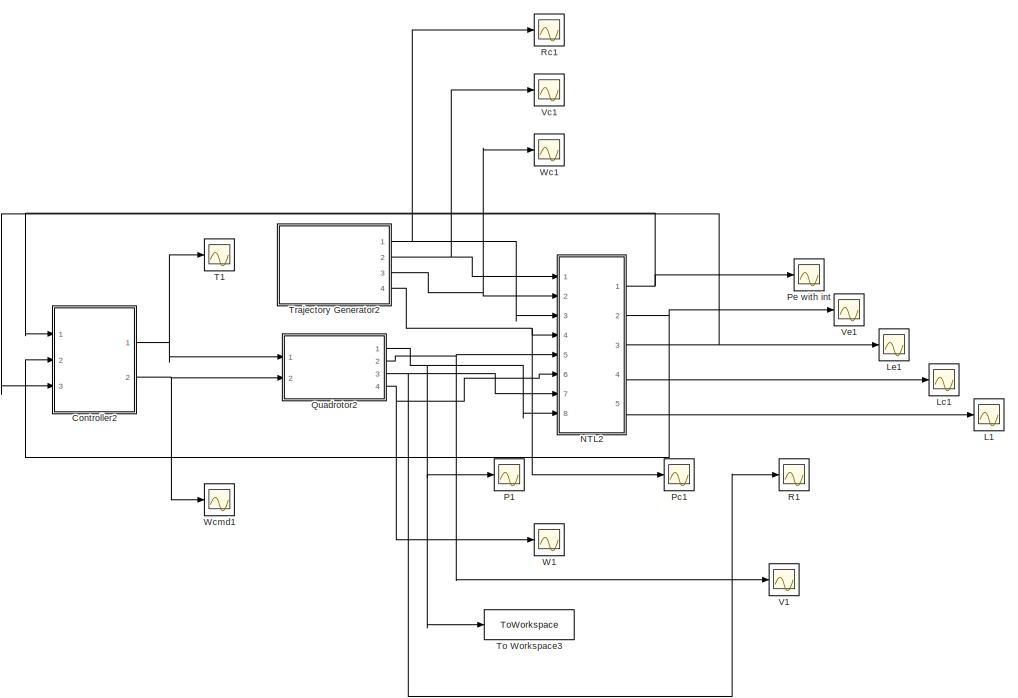
[diagram: root canvas - part 1/6, top center region]
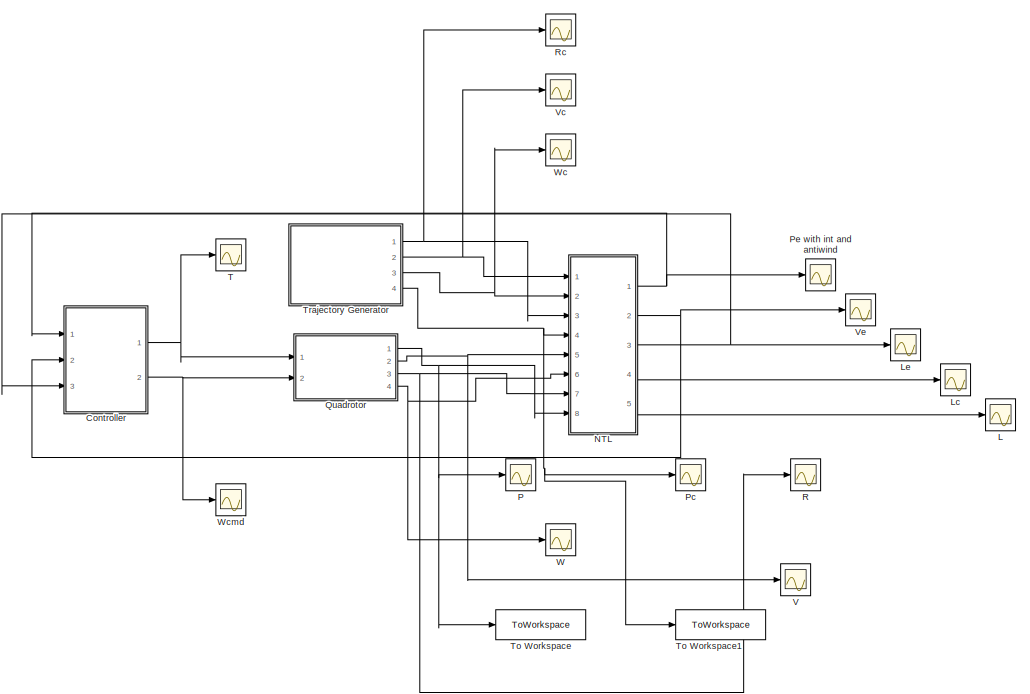
[diagram: root canvas - part 2/6, top left region]
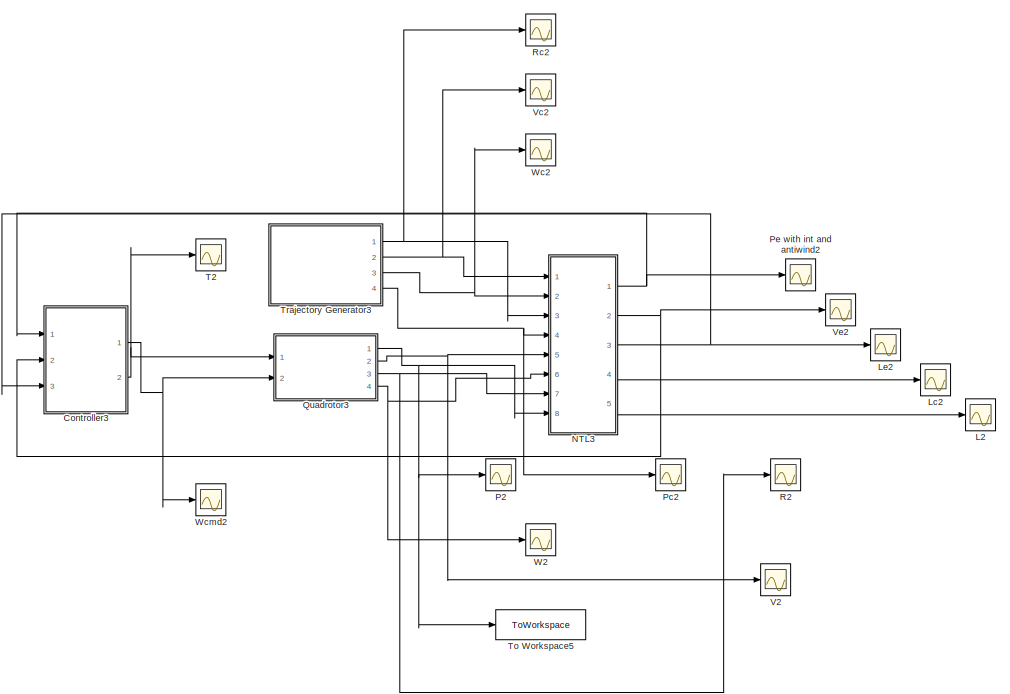
[diagram: root canvas - part 3/6, central region]
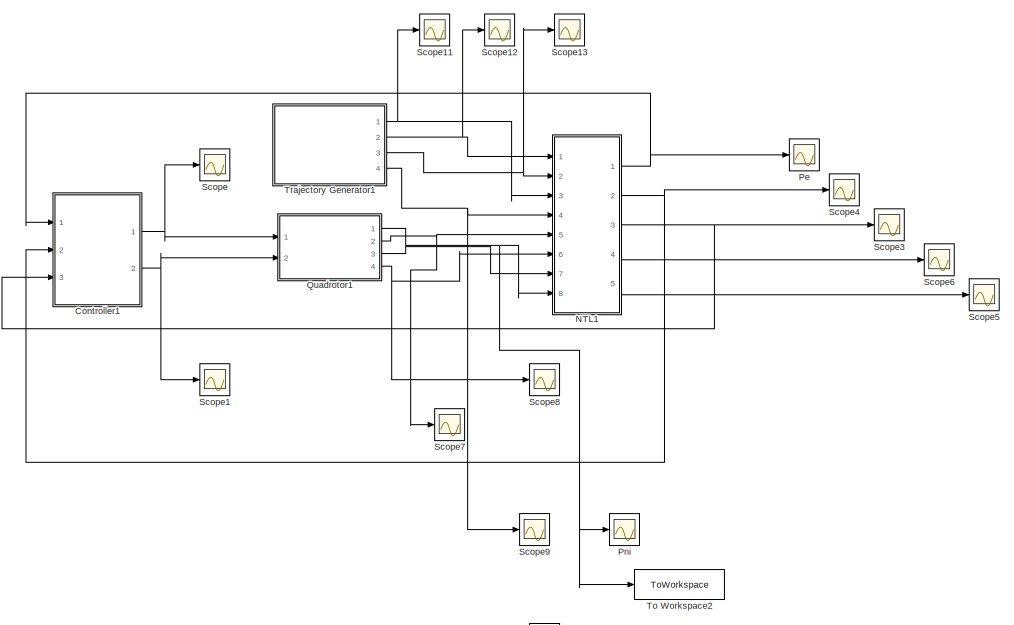
[diagram: root canvas - part 4/6, middle left region]
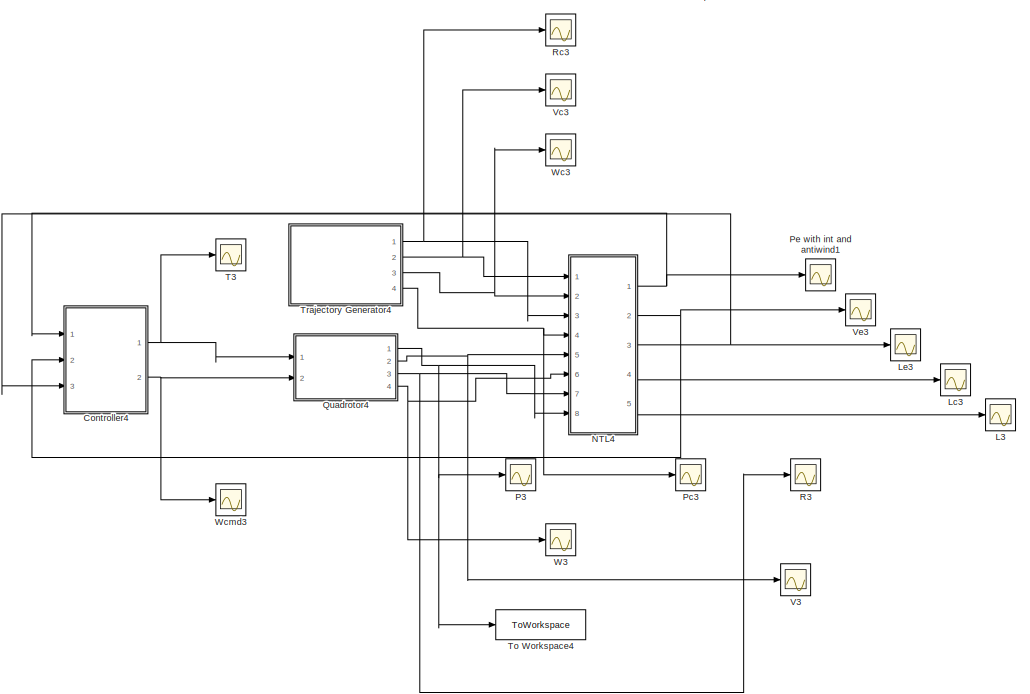
[diagram: root canvas - part 5/6, bottom left region]
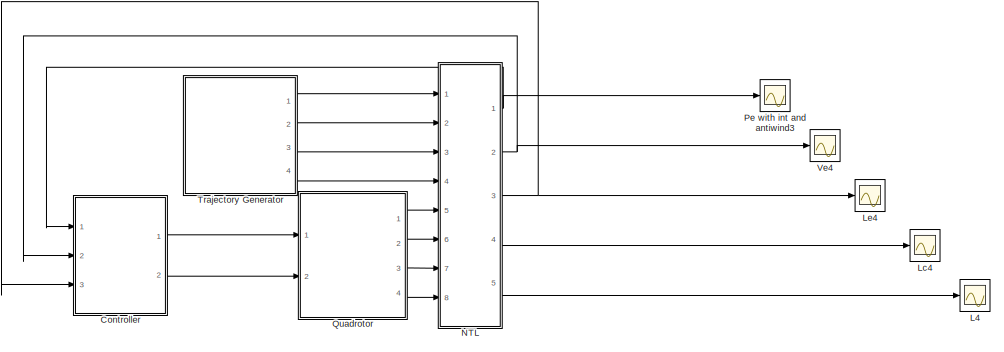
[diagram: root canvas - part 6/6, bottom right region]
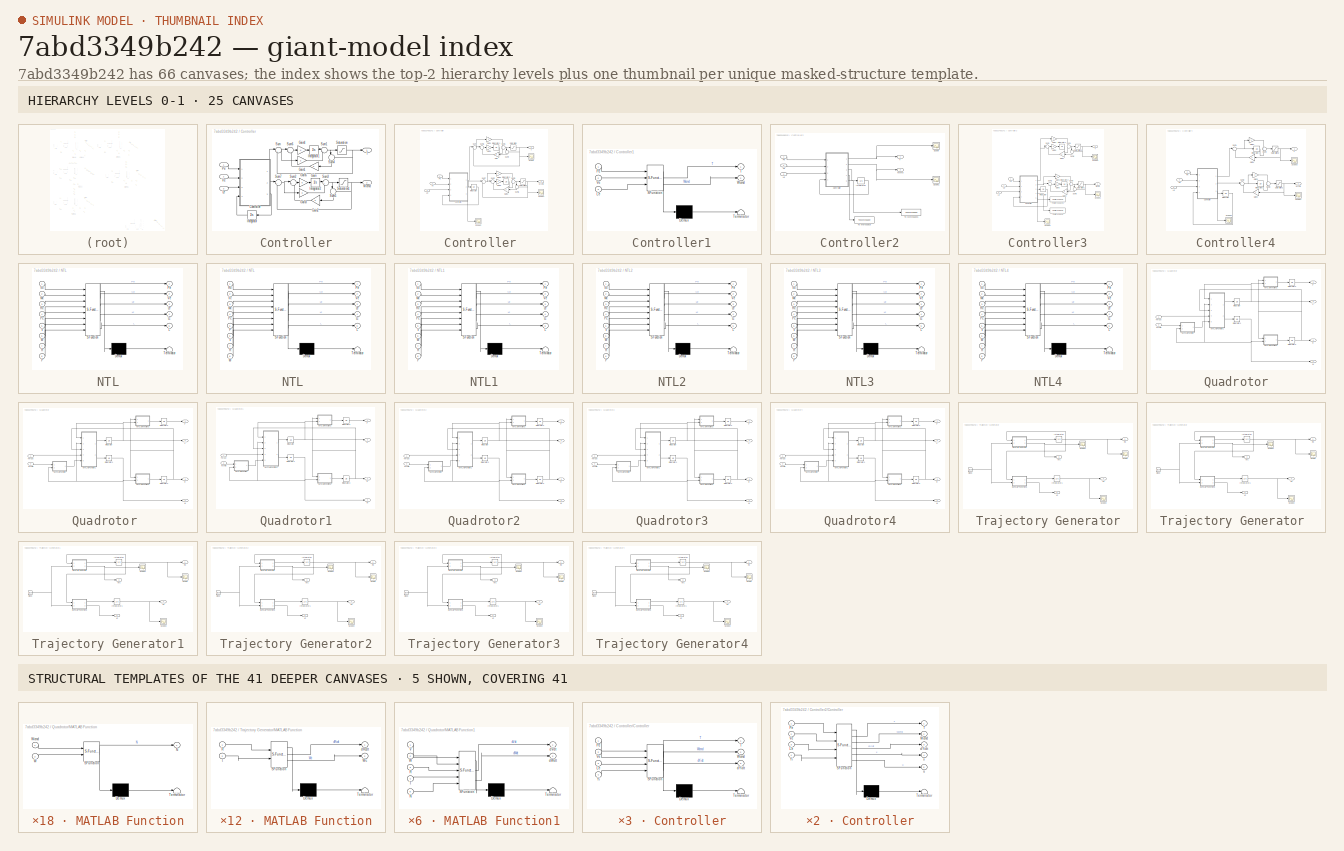
[diagram: thumbnail index - top-2 hierarchy levels (25 canvases) + 5 structural-template representatives of the remaining 41 canvases]
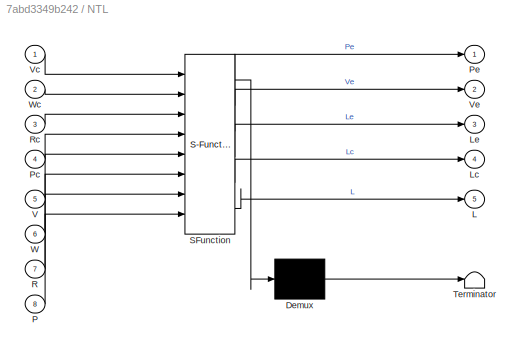
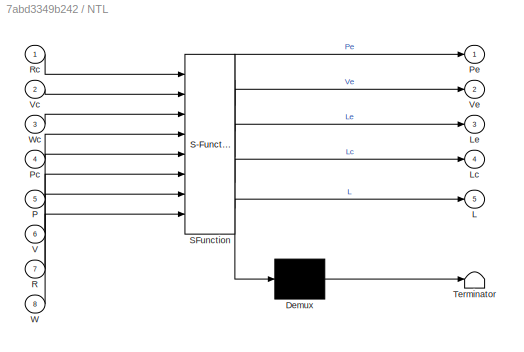
MODEL slx_7abd3349b242
KIND model
CONFIG AbsTol = auto
CONFIG EnableMultiTasking = off
CONFIG FixedStep = auto
CONFIG MaxStep = 0.01
CONFIG MinStep = auto
CONFIG RelTol = 1e-3
CONFIG SampleTimeConstraint = Unconstrained
CONFIG SolverName = VariableStepAuto
CONFIG StartTime = 0.0
CONFIG StopTime = 100
BLOCK [SubSystem] Controller
  Ports = [3, 2]
  RequestExecContextInheritance = off
BLOCK [SubSystem] Controller 
  Ports = [3, 2]
  RequestExecContextInheritance = off
BLOCK [SubSystem] Controller /Controller
  ErrorFcn = Stateflow.Translate.translate
  PermitHierarchicalResolution = ExplicitOnly
  Ports = [4, 3]
  RequestExecContextInheritance = off
  SFBlockType = MATLAB Function
  TreatAsAtomicUnit = on
BLOCK [Demux] Controller /Controller/ Demux 
  Outputs = 1
  Ports = [1, 1]
BLOCK [S-Function] Controller /Controller/ SFunction 
  EnableBusSupport = on
  FunctionName = sf_sfun
  Parameters = Ki
  PortCounts = [4 4]
  Ports = [4, 4]
  SFcnIsStateOwnerBlock = off
  SFunctionDeploymentMode = off
  Tag = Stateflow S-Function 41
BLOCK [Terminator] Controller /Controller/ Terminator 
BLOCK [Inport] Controller /Controller/Le
  Port = 3
BLOCK [Inport] Controller /Controller/Pe
BLOCK [Outport] Controller /Controller/T
BLOCK [Inport] Controller /Controller/Ve
  Port = 2
BLOCK [Outport] Controller /Controller/Wcmd
  Port = 2
BLOCK [Inport] Controller /Controller/Yi
  Port = 4
BLOCK [Outport] Controller /Controller/dYidt
  Port = 3
BLOCK [Gain] Controller /Gain
  Gain = 8
BLOCK [Gain] Controller /Gain1
  Gain = 2
BLOCK [Gain] Controller /Gain2
BLOCK [Gain] Controller /Gain3
BLOCK [Gain] Controller /Gain4
BLOCK [Gain] Controller /Gain5
  Gain = 5
BLOCK [Integrator] Controller /Integrator
  InitialCondition = [0;0;0;0]
  Ports = [1, 1]
BLOCK [Integrator] Controller /Integrator1
  InitialCondition = [0]
  Ports = [1, 1]
BLOCK [Integrator] Controller /Integrator2
  InitialCondition = [0]
  Ports = [1, 1]
BLOCK [Inport] Controller /Le
  Port = 3
BLOCK [Inport] Controller /Pe
BLOCK [Saturate] Controller /Saturation
  LowerLimit = -3
  UpperLimit = 3
BLOCK [Saturate] Controller /Saturation1
  LowerLimit = -3
  UpperLimit = 3
BLOCK [Scope] Controller /Scope
  Floating = off
  NumInputPorts = 1
  Ports = [1]
  ScopeSpecificationString = Simulink.scopes.TimeScopeBlockCfg('CurrentConfiguration', extmgr.ConfigurationSet(extmgr.Configuration('Core','General UI',true),extmgr.Configuration('Core','Source UI',true),extmgr.Configuration('Sources','WiredSimulink',true,'DataLoggingVariableName','ScopeData1'),extmgr.Configuration('Visuals','Time Domain',true,'SerializedDisplays',{struct('MinYLimReal','-0.375','MaxYLimReal','3.375','YLabelRe...<+1409ch>
BLOCK [Scope] Controller /Scope1
  Floating = off
  NumInputPorts = 1
  Ports = [1]
  ScopeSpecificationString = Simulink.scopes.TimeScopeBlockCfg('CurrentConfiguration', extmgr.ConfigurationSet(extmgr.Configuration('Core','General UI',true),extmgr.Configuration('Core','Source UI',true),extmgr.Configuration('Sources','WiredSimulink',true,'DataLoggingVariableName','ScopeData2'),extmgr.Configuration('Visuals','Time Domain',true,'SerializedDisplays',{struct('MinYLimReal','-4.375','MaxYLimReal','4.375','YLabelRe...<+1460ch>
BLOCK [Scope] Controller /Scope2
  Floating = off
  NumInputPorts = 1
  Ports = [1]
  ScopeSpecificationString = Simulink.scopes.TimeScopeBlockCfg('CurrentConfiguration', extmgr.ConfigurationSet(extmgr.Configuration('Core','General UI',true),extmgr.Configuration('Core','Source UI',true),extmgr.Configuration('Sources','WiredSimulink',true,'DataLoggingVariableName','ScopeData1'),extmgr.Configuration('Visuals','Time Domain',true,'SerializedDisplays',{struct('MinYLimReal','-0.26618','MaxYLimReal','1.1407','YLabe...<+1504ch>  <repeated x3 — deduplicated; at blocks: Scope2>
BLOCK [Sum] Controller /Sum
  Inputs = |+-
  Ports = [2, 1]
BLOCK [Sum] Controller /Sum1
  Ports = [2, 1]
BLOCK [Sum] Controller /Sum2
  Inputs = |+-
  Ports = [2, 1]
BLOCK [Sum] Controller /Sum3
  Ports = [2, 1]
BLOCK [Sum] Controller /Sum4
  Inputs = |+-
  NameLocation = right
  Ports = [2, 1]
BLOCK [Sum] Controller /Sum5
  Inputs = |+-
  NameLocation = right
  Ports = [2, 1]
BLOCK [Sum] Controller /Sum6
  Inputs = |+-
  Ports = [2, 1]
BLOCK [Sum] Controller /Sum7
  Inputs = |+-
  Ports = [2, 1]
BLOCK [Outport] Controller /T
  VectorParamsAs1DForOutWhenUnconnected = off
BLOCK [Inport] Controller /Ve
  Port = 2
BLOCK [Outport] Controller /Wcmd
  Port = 2
  VectorParamsAs1DForOutWhenUnconnected = off
BLOCK [SubSystem] Controller/Controller
  ErrorFcn = Stateflow.Translate.translate
  PermitHierarchicalResolution = ExplicitOnly
  Ports = [4, 3]
  RequestExecContextInheritance = off
  SFBlockType = MATLAB Function
  TreatAsAtomicUnit = on
BLOCK [Demux] Controller/Controller/ Demux 
  Outputs = 1
  Ports = [1, 1]
BLOCK [S-Function] Controller/Controller/ SFunction 
  EnableBusSupport = on
  FunctionName = sf_sfun
  Parameters = Ki
  PortCounts = [4 4]
  Ports = [4, 4]
  SFcnIsStateOwnerBlock = off
  SFunctionDeploymentMode = off
  Tag = Stateflow S-Function 18
BLOCK [Terminator] Controller/Controller/ Terminator 
BLOCK [Inport] Controller/Controller/Le
  Port = 3
BLOCK [Inport] Controller/Controller/Pe
BLOCK [Outport] Controller/Controller/T
BLOCK [Inport] Controller/Controller/Ve
  Port = 2
BLOCK [Outport] Controller/Controller/Wcmd
  Port = 2
BLOCK [Inport] Controller/Controller/Yi
  Port = 4
BLOCK [Outport] Controller/Controller/dYidt
  Port = 3
BLOCK [Gain] Controller/Gain
  Gain = 5
BLOCK [Gain] Controller/Gain1
  Gain = 2
BLOCK [Gain] Controller/Gain2
BLOCK [Gain] Controller/Gain3
BLOCK [Gain] Controller/Gain4
BLOCK [Gain] Controller/Gain5
  Gain = 5
BLOCK [Integrator] Controller/Integrator
  InitialCondition = [0;0;0;0]
  Ports = [1, 1]
BLOCK [Integrator] Controller/Integrator1
  InitialCondition = [0]
  Ports = [1, 1]
BLOCK [Integrator] Controller/Integrator2
  InitialCondition = [0]
  Ports = [1, 1]
BLOCK [Inport] Controller/Le
  Port = 3
BLOCK [Inport] Controller/Pe
BLOCK [Saturate] Controller/Saturation
  LowerLimit = -3
  UpperLimit = 3
BLOCK [Saturate] Controller/Saturation1
  LowerLimit = -3
  UpperLimit = 3
BLOCK [Sum] Controller/Sum
  Inputs = |+-
  Ports = [2, 1]
BLOCK [Sum] Controller/Sum1
  Inputs = |++
  Ports = [2, 1]
BLOCK [Sum] Controller/Sum2
  Inputs = |+-
  Ports = [2, 1]
BLOCK [Sum] Controller/Sum3
  Inputs = |++
  Ports = [2, 1]
BLOCK [Sum] Controller/Sum4
  Inputs = |+-
  NameLocation = right
  Ports = [2, 1]
BLOCK [Sum] Controller/Sum5
  Inputs = |+-
  NameLocation = right
  Ports = [2, 1]
BLOCK [Sum] Controller/Sum6
  Inputs = |+-
  Ports = [2, 1]
BLOCK [Sum] Controller/Sum7
  Inputs = |+-
  Ports = [2, 1]
BLOCK [Outport] Controller/T
  VectorParamsAs1DForOutWhenUnconnected = off
BLOCK [Inport] Controller/Ve
  Port = 2
BLOCK [Outport] Controller/Wcmd
  Port = 2
  VectorParamsAs1DForOutWhenUnconnected = off
BLOCK [SubSystem] Controller1
  ErrorFcn = Stateflow.Translate.translate
  PermitHierarchicalResolution = ExplicitOnly
  Ports = [3, 2]
  RequestExecContextInheritance = off
  SFBlockType = MATLAB Function
  TreatAsAtomicUnit = on
BLOCK [Demux] Controller1/ Demux 
  Outputs = 1
  Ports = [1, 1]
BLOCK [S-Function] Controller1/ SFunction 
  EnableBusSupport = on
  FunctionName = sf_sfun
  Parameters = K
  PortCounts = [3 3]
  Ports = [3, 3]
  SFcnIsStateOwnerBlock = off
  SFunctionDeploymentMode = off
  Tag = Stateflow S-Function 2
BLOCK [Terminator] Controller1/ Terminator 
BLOCK [Inport] Controller1/Le
  Port = 3
BLOCK [Inport] Controller1/Pe
BLOCK [Outport] Controller1/T
BLOCK [Inport] Controller1/Ve
  Port = 2
BLOCK [Outport] Controller1/Wcmd
  Port = 2
BLOCK [SubSystem] Controller2
  Ports = [3, 2]
  RequestExecContextInheritance = off
BLOCK [SubSystem] Controller2/Controller
  ErrorFcn = Stateflow.Translate.translate
  PermitHierarchicalResolution = ExplicitOnly
  Ports = [4, 5]
  RequestExecContextInheritance = off
  SFBlockType = MATLAB Function
  TreatAsAtomicUnit = on
BLOCK [Demux] Controller2/Controller/ Demux 
  Outputs = 1
  Ports = [1, 1]
BLOCK [S-Function] Controller2/Controller/ SFunction 
  EnableBusSupport = on
  FunctionName = sf_sfun
  Parameters = Ki
  PortCounts = [4 6]
  Ports = [4, 6]
  SFcnIsStateOwnerBlock = off
  SFunctionDeploymentMode = off
  Tag = Stateflow S-Function 9
BLOCK [Terminator] Controller2/Controller/ Terminator 
BLOCK [Inport] Controller2/Controller/Le
  Port = 3
BLOCK [Inport] Controller2/Controller/Pe
BLOCK [Outport] Controller2/Controller/T
BLOCK [Inport] Controller2/Controller/Ve
  Port = 2
BLOCK [Outport] Controller2/Controller/Wcmd
  Port = 2
BLOCK [Inport] Controller2/Controller/Yi
  Port = 4
BLOCK [Outport] Controller2/Controller/dYidt
  Port = 3
BLOCK [Outport] Controller2/Controller/u
  Port = 5
BLOCK [Outport] Controller2/Controller/x
  Port = 4
BLOCK [Integrator] Controller2/Integrator
  InitialCondition = [0;0;0;0]
  Ports = [1, 1]
BLOCK [Inport] Controller2/Le
  Port = 3
BLOCK [Inport] Controller2/Pe
BLOCK [Scope] Controller2/Scope
  Floating = off
  NumInputPorts = 1
  Ports = [1]
  ScopeSpecificationString = Simulink.scopes.TimeScopeBlockCfg('CurrentConfiguration', extmgr.ConfigurationSet(extmgr.Configuration('Core','General UI',true),extmgr.Configuration('Core','Source UI',true),extmgr.Configuration('Sources','WiredSimulink',true,'DataLoggingVariableName','ScopeData1'),extmgr.Configuration('Visuals','Time Domain',true,'SerializedDisplays',{struct('MinYLimReal','-0.32832','MaxYLimReal','2.95489','YLab...<+1439ch>
BLOCK [Scope] Controller2/Scope1
  Floating = off
  NumInputPorts = 1
  Ports = [1]
  ScopeSpecificationString = Simulink.scopes.TimeScopeBlockCfg('CurrentConfiguration', extmgr.ConfigurationSet(extmgr.Configuration('Core','General UI',true),extmgr.Configuration('Core','Source UI',true),extmgr.Configuration('Sources','WiredSimulink',true,'DataLoggingVariableName','ScopeData2'),extmgr.Configuration('Visuals','Time Domain',true,'SerializedDisplays',{struct('MinYLimReal','-5.03294','MaxYLimReal','2.32202','YLab...<+1484ch>
BLOCK [Outport] Controller2/T
  VectorParamsAs1DForOutWhenUnconnected = off
BLOCK [ToWorkspace] Controller2/To Workspace
  FixptAsFi = on
  MaxDataPoints = inf
  Ports = [1]
  SampleTime = -1
  SaveFormat = Timeseries
  VariableName = xnoaw
BLOCK [ToWorkspace] Controller2/To Workspace1
  FixptAsFi = on
  MaxDataPoints = inf
  Ports = [1]
  SampleTime = -1
  SaveFormat = Timeseries
  VariableName = unoaw
BLOCK [Inport] Controller2/Ve
  Port = 2
BLOCK [Outport] Controller2/Wcmd
  Port = 2
  VectorParamsAs1DForOutWhenUnconnected = off
BLOCK [SubSystem] Controller3
  Ports = [3, 2]
  RequestExecContextInheritance = off
BLOCK [SubSystem] Controller3/Controller
  ErrorFcn = Stateflow.Translate.translate
  PermitHierarchicalResolution = ExplicitOnly
  Ports = [4, 5]
  RequestExecContextInheritance = off
  SFBlockType = MATLAB Function
  TreatAsAtomicUnit = on
BLOCK [Demux] Controller3/Controller/ Demux 
  Outputs = 1
  Ports = [1, 1]
BLOCK [S-Function] Controller3/Controller/ SFunction 
  EnableBusSupport = on
  FunctionName = sf_sfun
  Parameters = Ki
  PortCounts = [4 6]
  Ports = [4, 6]
  SFcnIsStateOwnerBlock = off
  SFunctionDeploymentMode = off
  Tag = Stateflow S-Function 25
BLOCK [Terminator] Controller3/Controller/ Terminator 
BLOCK [Inport] Controller3/Controller/Le
  Port = 3
BLOCK [Inport] Controller3/Controller/Pe
BLOCK [Outport] Controller3/Controller/T
BLOCK [Inport] Controller3/Controller/Ve
  Port = 2
BLOCK [Outport] Controller3/Controller/Wcmd
  Port = 2
BLOCK [Inport] Controller3/Controller/Yi
  Port = 4
BLOCK [Outport] Controller3/Controller/dYidt
  Port = 3
BLOCK [Outport] Controller3/Controller/u
  Port = 5
BLOCK [Outport] Controller3/Controller/x
  Port = 4
BLOCK [Gain] Controller3/Gain1
  Gain = 4
BLOCK [Gain] Controller3/Gain2
BLOCK [Gain] Controller3/Gain3
BLOCK [Gain] Controller3/Gain4
  Gain = 2
BLOCK [Gain] Controller3/Gain5
  Gain = 5
BLOCK [Gain] Controller3/Gain6
BLOCK [Integrator] Controller3/Integrator
  InitialCondition = [0;0;0;0]
  Ports = [1, 1]
BLOCK [Integrator] Controller3/Integrator1
  InitialCondition = [0]
  Ports = [1, 1]
BLOCK [Integrator] Controller3/Integrator2
  InitialCondition = [0]
  Ports = [1, 1]
BLOCK [Inport] Controller3/Le
  Port = 3
BLOCK [Inport] Controller3/Pe
BLOCK [Saturate] Controller3/Saturation1
  LowerLimit = -3
  UpperLimit = 3
BLOCK [Saturate] Controller3/Saturation2
  LowerLimit = -3
  UpperLimit = 3
BLOCK [Scope] Controller3/Scope1
  Floating = off
  NumInputPorts = 1
  Ports = [1]
  ScopeSpecificationString = Simulink.scopes.TimeScopeBlockCfg('CurrentConfiguration', extmgr.ConfigurationSet(extmgr.Configuration('Core','General UI',true),extmgr.Configuration('Core','Source UI',true),extmgr.Configuration('Sources','WiredSimulink',true,'DataLoggingVariableName','ScopeData2'),extmgr.Configuration('Visuals','Time Domain',true,'SerializedDisplays',{struct('MinYLimReal','-4.375','MaxYLimReal','4.375','YLabelRe...<+1460ch>
BLOCK [Scope] Controller3/Scope2
  Floating = off
  NumInputPorts = 1
  Ports = [1]
BLOCK [Scope] Controller3/Scope3
  Floating = off
  NumInputPorts = 1
  Ports = [1]
  ScopeSpecificationString = Simulink.scopes.TimeScopeBlockCfg('CurrentConfiguration', extmgr.ConfigurationSet(extmgr.Configuration('Core','General UI',true),extmgr.Configuration('Core','Source UI',true),extmgr.Configuration('Sources','WiredSimulink',true,'DataLoggingVariableName','ScopeData16'),extmgr.Configuration('Visuals','Time Domain',true,'SerializedDisplays',{struct('MinYLimReal','-0.375','MaxYLimReal','3.375','YLabelR...<+1411ch>
BLOCK [Sum] Controller3/Sum1
  Inputs = |+-
  Ports = [2, 1]
BLOCK [Sum] Controller3/Sum2
  Inputs = |+-
  Ports = [2, 1]
BLOCK [Sum] Controller3/Sum3
  Ports = [2, 1]
BLOCK [Sum] Controller3/Sum4
  Ports = [2, 1]
BLOCK [Sum] Controller3/Sum5
  Inputs = |+-
  NameLocation = right
  Ports = [2, 1]
BLOCK [Sum] Controller3/Sum6
  Inputs = |+-
  NameLocation = right
  Ports = [2, 1]
BLOCK [Outport] Controller3/T
  Port = 2
  VectorParamsAs1DForOutWhenUnconnected = off
BLOCK [ToWorkspace] Controller3/To Workspace
  FixptAsFi = on
  MaxDataPoints = inf
  Ports = [1]
  SampleTime = -1
  SaveFormat = Timeseries
  VariableName = x
BLOCK [ToWorkspace] Controller3/To Workspace1
  FixptAsFi = on
  MaxDataPoints = inf
  Ports = [1]
  SampleTime = -1
  SaveFormat = Timeseries
  VariableName = u
BLOCK [Inport] Controller3/Ve
  Port = 2
BLOCK [Outport] Controller3/Wcmd
  VectorParamsAs1DForOutWhenUnconnected = off
BLOCK [SubSystem] Controller4
  Ports = [3, 2]
  RequestExecContextInheritance = off
BLOCK [SubSystem] Controller4/Controller
  ErrorFcn = Stateflow.Translate.translate
  PermitHierarchicalResolution = ExplicitOnly
  Ports = [4, 3]
  RequestExecContextInheritance = off
  SFBlockType = MATLAB Function
  TreatAsAtomicUnit = on
BLOCK [Demux] Controller4/Controller/ Demux 
  Outputs = 1
  Ports = [1, 1]
BLOCK [S-Function] Controller4/Controller/ SFunction 
  EnableBusSupport = on
  FunctionName = sf_sfun
  Parameters = Ki
  PortCounts = [4 4]
  Ports = [4, 4]
  SFcnIsStateOwnerBlock = off
  SFunctionDeploymentMode = off
  Tag = Stateflow S-Function 33
BLOCK [Terminator] Controller4/Controller/ Terminator 
BLOCK [Inport] Controller4/Controller/Le
  Port = 3
BLOCK [Inport] Controller4/Controller/Pe
BLOCK [Outport] Controller4/Controller/T
BLOCK [Inport] Controller4/Controller/Ve
  Port = 2
BLOCK [Outport] Controller4/Controller/Wcmd
  Port = 2
BLOCK [Inport] Controller4/Controller/Yi
  Port = 4
BLOCK [Outport] Controller4/Controller/dYidt
  Port = 3
BLOCK [Gain] Controller4/Gain1
  Gain = 4
BLOCK [Gain] Controller4/Gain2
  Gain = 3
BLOCK [Gain] Controller4/Gain3
  Gain = 2
BLOCK [Gain] Controller4/Gain4
  Gain = 2
BLOCK [Integrator] Controller4/Integrator
  InitialCondition = [0;0;0;0]
  Ports = [1, 1]
BLOCK [Integrator] Controller4/Integrator1
  InitialCondition = [0]
  Ports = [1, 1]
BLOCK [Integrator] Controller4/Integrator2
  InitialCondition = [0]
  Ports = [1, 1]
BLOCK [Inport] Controller4/Le
  Port = 3
BLOCK [Inport] Controller4/Pe
BLOCK [Saturate] Controller4/Saturation1
  LowerLimit = -3
  UpperLimit = 3
BLOCK [Saturate] Controller4/Saturation2
  LowerLimit = -3
  UpperLimit = 3
BLOCK [Scope] Controller4/Scope1
  Floating = off
  NumInputPorts = 1
  Ports = [1]
  ScopeSpecificationString = Simulink.scopes.TimeScopeBlockCfg('CurrentConfiguration', extmgr.ConfigurationSet(extmgr.Configuration('Core','General UI',true),extmgr.Configuration('Core','Source UI',true),extmgr.Configuration('Sources','WiredSimulink',true,'DataLoggingVariableName','ScopeData33'),extmgr.Configuration('Visuals','Time Domain',true,'SerializedDisplays',{struct('MinYLimReal','-0.375','MaxYLimReal','3.375','YLabelR...<+1411ch>
BLOCK [Scope] Controller4/Scope2
  Floating = off
  NumInputPorts = 1
  Ports = [1]
BLOCK [Scope] Controller4/Scope3
  Floating = off
  NumInputPorts = 1
  Ports = [1]
  ScopeSpecificationString = Simulink.scopes.TimeScopeBlockCfg('CurrentConfiguration', extmgr.ConfigurationSet(extmgr.Configuration('Core','General UI',true),extmgr.Configuration('Core','Source UI',true),extmgr.Configuration('Sources','WiredSimulink',true,'DataLoggingVariableName','ScopeData32'),extmgr.Configuration('Visuals','Time Domain',true,'SerializedDisplays',{struct('MinYLimReal','-0.375','MaxYLimReal','3.375','YLabelR...<+1411ch>
BLOCK [Sum] Controller4/Sum1
  Inputs = |+-
  Ports = [2, 1]
BLOCK [Sum] Controller4/Sum2
  Inputs = |+-
  Ports = [2, 1]
BLOCK [Sum] Controller4/Sum3
  Ports = [2, 1]
BLOCK [Sum] Controller4/Sum4
  Ports = [2, 1]
BLOCK [Outport] Controller4/T
  VectorParamsAs1DForOutWhenUnconnected = off
BLOCK [Inport] Controller4/Ve
  Port = 2
BLOCK [Outport] Controller4/Wcmd
  Port = 2
  VectorParamsAs1DForOutWhenUnconnected = off
BLOCK [Scope] L
  Floating = off
  NumInputPorts = 1
  Ports = [1]
  ScopeSpecificationString = Simulink.scopes.TimeScopeBlockCfg('CurrentConfiguration', extmgr.ConfigurationSet(extmgr.Configuration('Core','General UI',true),extmgr.Configuration('Core','Source UI',true),extmgr.Configuration('Sources','WiredSimulink',true,'DataLoggingVariableName','ScopeData6'),extmgr.Configuration('Visuals','Time Domain',true,'SerializedDisplays',{struct('MinYLimReal','-224.95209','MaxYLimReal','224.64561','...<+1400ch>
BLOCK [Scope] L1
  Floating = off
  NumInputPorts = 1
  Ports = [1]
  ScopeSpecificationString = Simulink.scopes.TimeScopeBlockCfg('CurrentConfiguration', extmgr.ConfigurationSet(extmgr.Configuration('Core','General UI',true),extmgr.Configuration('Core','Source UI',true),extmgr.Configuration('Sources','WiredSimulink',true,'DataLoggingVariableName','ScopeData1'),extmgr.Configuration('Visuals','Time Domain',true,'SerializedDisplays',{struct('MinYLimReal','-224.8361','MaxYLimReal','224.86857','Y...<+1398ch>  <repeated x3 — deduplicated; at blocks: L1, L2, L4>
BLOCK [Scope] L2
  Floating = off
  NumInputPorts = 1
  Ports = [1]
BLOCK [Scope] L3
  Floating = off
  NumInputPorts = 1
  Ports = [1]
  ScopeSpecificationString = Simulink.scopes.TimeScopeBlockCfg('CurrentConfiguration', extmgr.ConfigurationSet(extmgr.Configuration('Core','General UI',true),extmgr.Configuration('Core','Source UI',true),extmgr.Configuration('Sources','WiredSimulink',true,'DataLoggingVariableName','ScopeData17'),extmgr.Configuration('Visuals','Time Domain',true,'SerializedDisplays',{struct('MinYLimReal','-224.8361','MaxYLimReal','224.86857','...<+1399ch>
BLOCK [Scope] L4
  Floating = off
  NumInputPorts = 1
  Ports = [1]
BLOCK [Scope] Lc
  Floating = off
  NumInputPorts = 1
  Ports = [1]
  ScopeSpecificationString = Simulink.scopes.TimeScopeBlockCfg('CurrentConfiguration', extmgr.ConfigurationSet(extmgr.Configuration('Core','General UI',true),extmgr.Configuration('Core','Source UI',true),extmgr.Configuration('Sources','WiredSimulink',true,'DataLoggingVariableName','ScopeData7'),extmgr.Configuration('Visuals','Time Domain',true,'SerializedDisplays',{struct('MinYLimReal','-224.80634','MaxYLimReal','224.06866','...<+1403ch>
BLOCK [Scope] Lc1
  Floating = off
  NumInputPorts = 1
  Ports = [1]
  ScopeSpecificationString = Simulink.scopes.TimeScopeBlockCfg('CurrentConfiguration', extmgr.ConfigurationSet(extmgr.Configuration('Core','General UI',true),extmgr.Configuration('Core','Source UI',true),extmgr.Configuration('Sources','WiredSimulink',true,'DataLoggingVariableName','ScopeData2'),extmgr.Configuration('Visuals','Time Domain',true,'SerializedDisplays',{struct('MinYLimReal','-224.53755','MaxYLimReal','224.91373','...<+1403ch>  <repeated x3 — deduplicated; at blocks: Lc1, Lc2, Lc4>
BLOCK [Scope] Lc2
  Floating = off
  NumInputPorts = 1
  Ports = [1]
BLOCK [Scope] Lc3
  Floating = off
  NumInputPorts = 1
  Ports = [1]
  ScopeSpecificationString = Simulink.scopes.TimeScopeBlockCfg('CurrentConfiguration', extmgr.ConfigurationSet(extmgr.Configuration('Core','General UI',true),extmgr.Configuration('Core','Source UI',true),extmgr.Configuration('Sources','WiredSimulink',true,'DataLoggingVariableName','ScopeData18'),extmgr.Configuration('Visuals','Time Domain',true,'SerializedDisplays',{struct('MinYLimReal','-224.53755','MaxYLimReal','224.91373',...<+1404ch>
BLOCK [Scope] Lc4
  Floating = off
  NumInputPorts = 1
  Ports = [1]
BLOCK [Scope] Le
  Floating = off
  NumInputPorts = 1
  Ports = [1]
  ScopeSpecificationString = Simulink.scopes.TimeScopeBlockCfg('CurrentConfiguration', extmgr.ConfigurationSet(extmgr.Configuration('Core','General UI',true,'FigureColor',[1 1 1]),extmgr.Configuration('Core','Source UI',true),extmgr.Configuration('Sources','WiredSimulink',true,'DataLoggingVariableName','ScopeData4'),extmgr.Configuration('Visuals','Time Domain',true,'SerializedDisplays',{struct('MinYLimReal','-1.12215','MaxYLi...<+1793ch>
BLOCK [Scope] Le1
  Floating = off
  NumInputPorts = 1
  Ports = [1]
  ScopeSpecificationString = Simulink.scopes.TimeScopeBlockCfg('CurrentConfiguration', extmgr.ConfigurationSet(extmgr.Configuration('Core','General UI',true),extmgr.Configuration('Core','Source UI',true),extmgr.Configuration('Sources','WiredSimulink',true,'DataLoggingVariableName','ScopeData3'),extmgr.Configuration('Visuals','Time Domain',true,'SerializedDisplays',{struct('MinYLimReal','-0.4485','MaxYLimReal','0.16677','YLabe...<+1385ch>
BLOCK [Scope] Le2
  Floating = off
  NumInputPorts = 1
  Ports = [1]
  ScopeSpecificationString = Simulink.scopes.TimeScopeBlockCfg('CurrentConfiguration', extmgr.ConfigurationSet(extmgr.Configuration('Core','General UI',true,'FigureColor',[1 1 1]),extmgr.Configuration('Core','Source UI',true),extmgr.Configuration('Sources','WiredSimulink',true,'DataLoggingVariableName','ScopeData3'),extmgr.Configuration('Visuals','Time Domain',true,'SerializedDisplays',{struct('MinYLimReal','-1.11894','MaxYLi...<+1806ch>
BLOCK [Scope] Le3
  Floating = off
  NumInputPorts = 1
  Ports = [1]
  ScopeSpecificationString = Simulink.scopes.TimeScopeBlockCfg('CurrentConfiguration', extmgr.ConfigurationSet(extmgr.Configuration('Core','General UI',true,'FigureColor',[1 1 1]),extmgr.Configuration('Core','Source UI',true),extmgr.Configuration('Sources','WiredSimulink',true,'DataLoggingVariableName','ScopeData19'),extmgr.Configuration('Visuals','Time Domain',true,'SerializedDisplays',{struct('MinYLimReal','-1.11894','MaxYL...<+1807ch>
BLOCK [Scope] Le4
  Floating = off
  NumInputPorts = 1
  Ports = [1]
  ScopeSpecificationString = Simulink.scopes.TimeScopeBlockCfg('CurrentConfiguration', extmgr.ConfigurationSet(extmgr.Configuration('Core','General UI',true,'FigureColor',[1 1 1]),extmgr.Configuration('Core','Source UI',true),extmgr.Configuration('Sources','WiredSimulink',true,'DataLoggingVariableName','ScopeData3'),extmgr.Configuration('Visuals','Time Domain',true,'SerializedDisplays',{struct('MinYLimReal','-1.11894','MaxYLi...<+1806ch>
BLOCK [SubSystem] NTL
  ErrorFcn = Stateflow.Translate.translate
  PermitHierarchicalResolution = ExplicitOnly
  Ports = [8, 5]
  RequestExecContextInheritance = off
  SFBlockType = MATLAB Function
  TreatAsAtomicUnit = on
BLOCK [SubSystem] NTL 
  ErrorFcn = Stateflow.Translate.translate
  PermitHierarchicalResolution = ExplicitOnly
  Ports = [8, 5]
  RequestExecContextInheritance = off
  SFBlockType = MATLAB Function
  TreatAsAtomicUnit = on
BLOCK [Demux] NTL / Demux 
  Outputs = 1
  Ports = [1, 1]
BLOCK [S-Function] NTL / SFunction 
  EnableBusSupport = on
  FunctionName = sf_sfun
  PortCounts = [8 6]
  Ports = [8, 6]
  SFcnIsStateOwnerBlock = off
  SFunctionDeploymentMode = off
  Tag = Stateflow S-Function 42
BLOCK [Terminator] NTL / Terminator 
BLOCK [Outport] NTL /L
  Port = 5
BLOCK [Outport] NTL /Lc
  Port = 4
BLOCK [Outport] NTL /Le
  Port = 3
BLOCK [Inport] NTL /P
  Port = 5
BLOCK [Inport] NTL /Pc
  Port = 4
BLOCK [Outport] NTL /Pe
BLOCK [Inport] NTL /R
  Port = 7
BLOCK [Inport] NTL /Rc
BLOCK [Inport] NTL /V
  Port = 6
BLOCK [Inport] NTL /Vc
  Port = 2
BLOCK [Outport] NTL /Ve
  Port = 2
BLOCK [Inport] NTL /W
  Port = 8
BLOCK [Inport] NTL /Wc
  Port = 3
BLOCK [Demux] NTL/ Demux 
  Outputs = 1
  Ports = [1, 1]
BLOCK [S-Function] NTL/ SFunction 
  EnableBusSupport = on
  FunctionName = sf_sfun
  PortCounts = [8 6]
  Ports = [8, 6]
  SFcnIsStateOwnerBlock = off
  SFunctionDeploymentMode = off
  Tag = Stateflow S-Function 8
BLOCK [Terminator] NTL/ Terminator 
BLOCK [Outport] NTL/L
  Port = 5
BLOCK [Outport] NTL/Lc
  Port = 4
BLOCK [Outport] NTL/Le
  Port = 3
BLOCK [Inport] NTL/P
  Port = 8
BLOCK [Inport] NTL/Pc
  Port = 4
BLOCK [Outport] NTL/Pe
BLOCK [Inport] NTL/R
  Port = 7
BLOCK [Inport] NTL/Rc
  Port = 3
BLOCK [Inport] NTL/V
  Port = 5
BLOCK [Inport] NTL/Vc
BLOCK [Outport] NTL/Ve
  Port = 2
BLOCK [Inport] NTL/W
  Port = 6
BLOCK [Inport] NTL/Wc
  Port = 2
BLOCK [SubSystem] NTL1
  ErrorFcn = Stateflow.Translate.translate
  PermitHierarchicalResolution = ExplicitOnly
  Ports = [8, 5]
  RequestExecContextInheritance = off
  SFBlockType = MATLAB Function
  TreatAsAtomicUnit = on
BLOCK [Demux] NTL1/ Demux 
  Outputs = 1
  Ports = [1, 1]
BLOCK [S-Function] NTL1/ SFunction 
  EnableBusSupport = on
  FunctionName = sf_sfun
  PortCounts = [8 6]
  Ports = [8, 6]
  SFcnIsStateOwnerBlock = off
  SFunctionDeploymentMode = off
  Tag = Stateflow S-Function 10
BLOCK [Terminator] NTL1/ Terminator 
BLOCK [Outport] NTL1/L
  Port = 5
BLOCK [Outport] NTL1/Lc
  Port = 4
BLOCK [Outport] NTL1/Le
  Port = 3
BLOCK [Inport] NTL1/P
  Port = 8
BLOCK [Inport] NTL1/Pc
  Port = 4
BLOCK [Outport] NTL1/Pe
BLOCK [Inport] NTL1/R
  Port = 7
BLOCK [Inport] NTL1/Rc
  Port = 3
BLOCK [Inport] NTL1/V
  Port = 5
BLOCK [Inport] NTL1/Vc
BLOCK [Outport] NTL1/Ve
  Port = 2
BLOCK [Inport] NTL1/W
  Port = 6
BLOCK [Inport] NTL1/Wc
  Port = 2
BLOCK [SubSystem] NTL2
  ErrorFcn = Stateflow.Translate.translate
  PermitHierarchicalResolution = ExplicitOnly
  Ports = [8, 5]
  RequestExecContextInheritance = off
  SFBlockType = MATLAB Function
  TreatAsAtomicUnit = on
BLOCK [Demux] NTL2/ Demux 
  Outputs = 1
  Ports = [1, 1]
BLOCK [S-Function] NTL2/ SFunction 
  EnableBusSupport = on
  FunctionName = sf_sfun
  PortCounts = [8 6]
  Ports = [8, 6]
  SFcnIsStateOwnerBlock = off
  SFunctionDeploymentMode = off
  Tag = Stateflow S-Function 17
BLOCK [Terminator] NTL2/ Terminator 
BLOCK [Outport] NTL2/L
  Port = 5
BLOCK [Outport] NTL2/Lc
  Port = 4
BLOCK [Outport] NTL2/Le
  Port = 3
BLOCK [Inport] NTL2/P
  Port = 8
BLOCK [Inport] NTL2/Pc
  Port = 4
BLOCK [Outport] NTL2/Pe
BLOCK [Inport] NTL2/R
  Port = 7
BLOCK [Inport] NTL2/Rc
  Port = 3
BLOCK [Inport] NTL2/V
  Port = 5
BLOCK [Inport] NTL2/Vc
BLOCK [Outport] NTL2/Ve
  Port = 2
BLOCK [Inport] NTL2/W
  Port = 6
BLOCK [Inport] NTL2/Wc
  Port = 2
BLOCK [SubSystem] NTL3
  ErrorFcn = Stateflow.Translate.translate
  PermitHierarchicalResolution = ExplicitOnly
  Ports = [8, 5]
  RequestExecContextInheritance = off
  SFBlockType = MATLAB Function
  TreatAsAtomicUnit = on
BLOCK [Demux] NTL3/ Demux 
  Outputs = 1
  Ports = [1, 1]
BLOCK [S-Function] NTL3/ SFunction 
  EnableBusSupport = on
  FunctionName = sf_sfun
  PortCounts = [8 6]
  Ports = [8, 6]
  SFcnIsStateOwnerBlock = off
  SFunctionDeploymentMode = off
  Tag = Stateflow S-Function 26
BLOCK [Terminator] NTL3/ Terminator 
BLOCK [Outport] NTL3/L
  Port = 5
BLOCK [Outport] NTL3/Lc
  Port = 4
BLOCK [Outport] NTL3/Le
  Port = 3
BLOCK [Inport] NTL3/P
  Port = 8
BLOCK [Inport] NTL3/Pc
  Port = 4
BLOCK [Outport] NTL3/Pe
BLOCK [Inport] NTL3/R
  Port = 7
BLOCK [Inport] NTL3/Rc
  Port = 3
BLOCK [Inport] NTL3/V
  Port = 5
BLOCK [Inport] NTL3/Vc
BLOCK [Outport] NTL3/Ve
  Port = 2
BLOCK [Inport] NTL3/W
  Port = 6
BLOCK [Inport] NTL3/Wc
  Port = 2
BLOCK [SubSystem] NTL4
  ErrorFcn = Stateflow.Translate.translate
  PermitHierarchicalResolution = ExplicitOnly
  Ports = [8, 5]
  RequestExecContextInheritance = off
  SFBlockType = MATLAB Function
  TreatAsAtomicUnit = on
BLOCK [Demux] NTL4/ Demux 
  Outputs = 1
  Ports = [1, 1]
BLOCK [S-Function] NTL4/ SFunction 
  EnableBusSupport = on
  FunctionName = sf_sfun
  PortCounts = [8 6]
  Ports = [8, 6]
  SFcnIsStateOwnerBlock = off
  SFunctionDeploymentMode = off
  Tag = Stateflow S-Function 34
BLOCK [Terminator] NTL4/ Terminator 
BLOCK [Outport] NTL4/L
  Port = 5
BLOCK [Outport] NTL4/Lc
  Port = 4
BLOCK [Outport] NTL4/Le
  Port = 3
BLOCK [Inport] NTL4/P
  Port = 8
BLOCK [Inport] NTL4/Pc
  Port = 4
BLOCK [Outport] NTL4/Pe
BLOCK [Inport] NTL4/R
  Port = 7
BLOCK [Inport] NTL4/Rc
  Port = 3
BLOCK [Inport] NTL4/V
  Port = 5
BLOCK [Inport] NTL4/Vc
BLOCK [Outport] NTL4/Ve
  Port = 2
BLOCK [Inport] NTL4/W
  Port = 6
BLOCK [Inport] NTL4/Wc
  Port = 2
BLOCK [Scope] P
  Floating = off
  NumInputPorts = 1
  Ports = [1]
  ScopeSpecificationString = Simulink.scopes.TimeScopeBlockCfg('CurrentConfiguration', extmgr.ConfigurationSet(extmgr.Configuration('Core','General UI',true),extmgr.Configuration('Core','Source UI',true),extmgr.Configuration('Sources','WiredSimulink',true,'DataLoggingVariableName','ScopeData8'),extmgr.Configuration('Visuals','Time Domain',true,'SerializedDisplays',{struct('MinYLimReal','-12.47632','MaxYLimReal','12.69376','YL...<+1478ch>
BLOCK [Scope] P1
  Floating = off
  NumInputPorts = 1
  Ports = [1]
  ScopeSpecificationString = Simulink.scopes.TimeScopeBlockCfg('CurrentConfiguration', extmgr.ConfigurationSet(extmgr.Configuration('Core','General UI',true),extmgr.Configuration('Core','Source UI',true),extmgr.Configuration('Sources','WiredSimulink',true,'DataLoggingVariableName','ScopeData4'),extmgr.Configuration('Visuals','Time Domain',true,'SerializedDisplays',{struct('MinYLimReal','-12.46849','MaxYLimReal','12.6847','YLa...<+1474ch>
BLOCK [Scope] P2
  Floating = off
  NumInputPorts = 1
  Ports = [1]
  ScopeSpecificationString = Simulink.scopes.TimeScopeBlockCfg('CurrentConfiguration', extmgr.ConfigurationSet(extmgr.Configuration('Core','General UI',true),extmgr.Configuration('Core','Source UI',true),extmgr.Configuration('Sources','WiredSimulink',true,'DataLoggingVariableName','ScopeData4'),extmgr.Configuration('Visuals','Time Domain',true,'SerializedDisplays',{struct('MinYLimReal','-12.47632','MaxYLimReal','12.69376','YL...<+1478ch>
BLOCK [Scope] P3
  Floating = off
  NumInputPorts = 1
  Ports = [1]
  ScopeSpecificationString = Simulink.scopes.TimeScopeBlockCfg('CurrentConfiguration', extmgr.ConfigurationSet(extmgr.Configuration('Core','General UI',true),extmgr.Configuration('Core','Source UI',true),extmgr.Configuration('Sources','WiredSimulink',true,'DataLoggingVariableName','ScopeData20'),extmgr.Configuration('Visuals','Time Domain',true,'SerializedDisplays',{struct('MinYLimReal','-12.47632','MaxYLimReal','12.69376','Y...<+1479ch>
BLOCK [Scope] Pc
  Floating = off
  NumInputPorts = 1
  Ports = [1]
  ScopeSpecificationString = Simulink.scopes.TimeScopeBlockCfg('CurrentConfiguration', extmgr.ConfigurationSet(extmgr.Configuration('Core','General UI',true),extmgr.Configuration('Core','Source UI',true),extmgr.Configuration('Sources','WiredSimulink',true,'DataLoggingVariableName','ScopeData3'),extmgr.Configuration('Visuals','Time Domain',true,'SerializedDisplays',{struct('MinYLimReal','-12.53685','MaxYLimReal','12.65264','YL...<+1524ch>
BLOCK [Scope] Pc1
  Floating = off
  NumInputPorts = 1
  Ports = [1]
  ScopeSpecificationString = Simulink.scopes.TimeScopeBlockCfg('CurrentConfiguration', extmgr.ConfigurationSet(extmgr.Configuration('Core','General UI',true),extmgr.Configuration('Core','Source UI',true),extmgr.Configuration('Sources','WiredSimulink',true,'DataLoggingVariableName','ScopeData5'),extmgr.Configuration('Visuals','Time Domain',true,'SerializedDisplays',{struct('MinYLimReal','-12.53685','MaxYLimReal','12.65264','YL...<+1524ch>
BLOCK [Scope] Pc2
  Floating = off
  NumInputPorts = 1
  Ports = [1]
  ScopeSpecificationString = Simulink.scopes.TimeScopeBlockCfg('CurrentConfiguration', extmgr.ConfigurationSet(extmgr.Configuration('Core','General UI',true),extmgr.Configuration('Core','Source UI',true),extmgr.Configuration('Sources','WiredSimulink',true,'DataLoggingVariableName','ScopeData5'),extmgr.Configuration('Visuals','Time Domain',true,'SerializedDisplays',{struct('MinYLimReal','-12.53685','MaxYLimReal','12.65264','YL...<+1524ch>
BLOCK [Scope] Pc3
  Floating = off
  NumInputPorts = 1
  Ports = [1]
  ScopeSpecificationString = Simulink.scopes.TimeScopeBlockCfg('CurrentConfiguration', extmgr.ConfigurationSet(extmgr.Configuration('Core','General UI',true),extmgr.Configuration('Core','Source UI',true),extmgr.Configuration('Sources','WiredSimulink',true,'DataLoggingVariableName','ScopeData21'),extmgr.Configuration('Visuals','Time Domain',true,'SerializedDisplays',{struct('MinYLimReal','-12.53685','MaxYLimReal','12.65264','Y...<+1525ch>
BLOCK [Scope] Pe
  Floating = off
  NumInputPorts = 1
  Ports = [1]
  ScopeSpecificationString = Simulink.scopes.TimeScopeBlockCfg('CurrentConfiguration', extmgr.ConfigurationSet(extmgr.Configuration('Core','General UI',true),extmgr.Configuration('Core','Source UI',true),extmgr.Configuration('Sources','WiredSimulink',true,'DataLoggingVariableName','ScopeData7'),extmgr.Configuration('Visuals','Time Domain',true,'SerializedDisplays',{struct('MinYLimReal','-0.3958','MaxYLimReal','1.15509','YLabe...<+1458ch>
BLOCK [Scope] Pe with int
  Floating = off
  NumInputPorts = 1
  Ports = [1]
  ScopeSpecificationString = Simulink.scopes.TimeScopeBlockCfg('CurrentConfiguration', extmgr.ConfigurationSet(extmgr.Configuration('Core','General UI',true),extmgr.Configuration('Core','Source UI',true),extmgr.Configuration('Sources','WiredSimulink',true,'DataLoggingVariableName','ScopeData6'),extmgr.Configuration('Visuals','Time Domain',true,'SerializedDisplays',{struct('MinYLimReal','-0.41019','MaxYLimReal','1.15669','YLab...<+1473ch>
BLOCK [Scope] Pe with int and antiwind
  Floating = off
  NumInputPorts = 1
  Ports = [1]
  ScopeSpecificationString = Simulink.scopes.TimeScopeBlockCfg('CurrentConfiguration', extmgr.ConfigurationSet(extmgr.Configuration('Core','General UI',true,'FigureColor',[1 1 1]),extmgr.Configuration('Core','Source UI',true),extmgr.Configuration('Sources','WiredSimulink',true,'DataLoggingVariableName','ScopeData3'),extmgr.Configuration('Visuals','Time Domain',true,'SerializedDisplays',{struct('MinYLimReal','-0.25242','MaxYLi...<+1793ch>
BLOCK [Scope] Pe with int and antiwind1
  Floating = off
  NumInputPorts = 1
  Ports = [1]
  ScopeSpecificationString = Simulink.scopes.TimeScopeBlockCfg('CurrentConfiguration', extmgr.ConfigurationSet(extmgr.Configuration('Core','General UI',true,'FigureColor',[1 1 1]),extmgr.Configuration('Core','Source UI',true),extmgr.Configuration('Sources','WiredSimulink',true,'DataLoggingVariableName','ScopeData22'),extmgr.Configuration('Visuals','Time Domain',true,'SerializedDisplays',{struct('MinYLimReal','-0.25853','MaxYL...<+1784ch>
BLOCK [Scope] Pe with int and antiwind2
  Floating = off
  NumInputPorts = 1
  Ports = [1]
  ScopeSpecificationString = Simulink.scopes.TimeScopeBlockCfg('CurrentConfiguration', extmgr.ConfigurationSet(extmgr.Configuration('Core','General UI',true,'FigureColor',[1 1 1]),extmgr.Configuration('Core','Source UI',true),extmgr.Configuration('Sources','WiredSimulink',true,'DataLoggingVariableName','ScopeData6'),extmgr.Configuration('Visuals','Time Domain',true,'SerializedDisplays',{struct('MinYLimReal','-0.27689','MaxYLi...<+1796ch>
BLOCK [Scope] Pe with int and antiwind3
  Floating = off
  NumInputPorts = 1
  Ports = [1]
  ScopeSpecificationString = Simulink.scopes.TimeScopeBlockCfg('CurrentConfiguration', extmgr.ConfigurationSet(extmgr.Configuration('Core','General UI',true,'FigureColor',[1 1 1]),extmgr.Configuration('Core','Source UI',true),extmgr.Configuration('Sources','WiredSimulink',true,'DataLoggingVariableName','ScopeData6'),extmgr.Configuration('Visuals','Time Domain',true,'SerializedDisplays',{struct('MinYLimReal','-0.26039','MaxYLi...<+1793ch>
BLOCK [Scope] Pni
  Floating = off
  NumInputPorts = 1
  Ports = [1]
  ScopeSpecificationString = Simulink.scopes.TimeScopeBlockCfg('CurrentConfiguration', extmgr.ConfigurationSet(extmgr.Configuration('Core','General UI',true),extmgr.Configuration('Core','Source UI',true),extmgr.Configuration('Sources','WiredSimulink',true,'DataLoggingVariableName','ScopeData6'),extmgr.Configuration('Visuals','Time Domain',true,'SerializedDisplays',{struct('MinYLimReal','-12.96856','MaxYLimReal','13.09664','YL...<+1494ch>
BLOCK [SubSystem] Quadrotor
  Ports = [2, 4]
  RequestExecContextInheritance = off
BLOCK [SubSystem] Quadrotor 
  Ports = [2, 4]
  RequestExecContextInheritance = off
BLOCK [Integrator] Quadrotor /Integrator
  InitialCondition = [0;0;0]
  Ports = [1, 1]
BLOCK [Integrator] Quadrotor /Integrator1
  InitialCondition = [0;0;0]
  Ports = [1, 1]
BLOCK [Integrator] Quadrotor /Integrator2
  InitialCondition = [0;1;0]
  Ports = [1, 1]
BLOCK [Integrator] Quadrotor /Integrator3
  InitialCondition = eye(3)
  Ports = [1, 1]
BLOCK [SubSystem] Quadrotor /MATLAB Function
  ErrorFcn = Stateflow.Translate.translate
  PermitHierarchicalResolution = ExplicitOnly
  Ports = [2, 1]
  RequestExecContextInheritance = off
  SFBlockType = MATLAB Function
  TreatAsAtomicUnit = on
BLOCK [Demux] Quadrotor /MATLAB Function/ Demux 
  Outputs = 1
  Ports = [1, 1]
BLOCK [S-Function] Quadrotor /MATLAB Function/ SFunction 
  EnableBusSupport = on
  FunctionName = sf_sfun
  PortCounts = [2 2]
  Ports = [2, 2]
  SFcnIsStateOwnerBlock = off
  SFunctionDeploymentMode = off
  Tag = Stateflow S-Function 43
BLOCK [Terminator] Quadrotor /MATLAB Function/ Terminator 
BLOCK [Outport] Quadrotor /MATLAB Function/N
BLOCK [Inport] Quadrotor /MATLAB Function/W
  Port = 2
BLOCK [Inport] Quadrotor /MATLAB Function/Wcmd
BLOCK [SubSystem] Quadrotor /MATLAB Function1
  ErrorFcn = Stateflow.Translate.translate
  PermitHierarchicalResolution = ExplicitOnly
  Ports = [5, 2]
  RequestExecContextInheritance = off
  SFBlockType = MATLAB Function
  TreatAsAtomicUnit = on
BLOCK [Demux] Quadrotor /MATLAB Function1/ Demux 
  Outputs = 1
  Ports = [1, 1]
BLOCK [S-Function] Quadrotor /MATLAB Function1/ SFunction 
  EnableBusSupport = on
  FunctionName = sf_sfun
  Parameters = J,Jinv,g,m,windforce
  PortCounts = [5 3]
  Ports = [5, 3]
  SFcnIsStateOwnerBlock = off
  SFunctionDeploymentMode = off
  Tag = Stateflow S-Function 44
BLOCK [Terminator] Quadrotor /MATLAB Function1/ Terminator 
BLOCK [Inport] Quadrotor /MATLAB Function1/N
  Port = 5
BLOCK [Inport] Quadrotor /MATLAB Function1/R
  Port = 3
BLOCK [Inport] Quadrotor /MATLAB Function1/T
  Port = 4
BLOCK [Inport] Quadrotor /MATLAB Function1/V
BLOCK [Inport] Quadrotor /MATLAB Function1/W
  Port = 2
BLOCK [Outport] Quadrotor /MATLAB Function1/dVdt
BLOCK [Outport] Quadrotor /MATLAB Function1/dWdt
  Port = 2
BLOCK [SubSystem] Quadrotor /MATLAB Function2
  ErrorFcn = Stateflow.Translate.translate
  PermitHierarchicalResolution = ExplicitOnly
  Ports = [2, 1]
  RequestExecContextInheritance = off
  SFBlockType = MATLAB Function
  TreatAsAtomicUnit = on
BLOCK [Demux] Quadrotor /MATLAB Function2/ Demux 
  Outputs = 1
  Ports = [1, 1]
BLOCK [S-Function] Quadrotor /MATLAB Function2/ SFunction 
  EnableBusSupport = on
  FunctionName = sf_sfun
  PortCounts = [2 2]
  Ports = [2, 2]
  SFcnIsStateOwnerBlock = off
  SFunctionDeploymentMode = off
  Tag = Stateflow S-Function 45
BLOCK [Terminator] Quadrotor /MATLAB Function2/ Terminator 
BLOCK [Inport] Quadrotor /MATLAB Function2/R
BLOCK [Inport] Quadrotor /MATLAB Function2/W
  Port = 2
BLOCK [Outport] Quadrotor /MATLAB Function2/dRdt
BLOCK [SubSystem] Quadrotor /MATLAB Function3
  ErrorFcn = Stateflow.Translate.translate
  PermitHierarchicalResolution = ExplicitOnly
  Ports = [2, 1]
  RequestExecContextInheritance = off
  SFBlockType = MATLAB Function
  TreatAsAtomicUnit = on
BLOCK [Demux] Quadrotor /MATLAB Function3/ Demux 
  Outputs = 1
  Ports = [1, 1]
BLOCK [S-Function] Quadrotor /MATLAB Function3/ SFunction 
  EnableBusSupport = on
  FunctionName = sf_sfun
  PortCounts = [2 2]
  Ports = [2, 2]
  SFcnIsStateOwnerBlock = off
  SFunctionDeploymentMode = off
  Tag = Stateflow S-Function 46
BLOCK [Terminator] Quadrotor /MATLAB Function3/ Terminator 
BLOCK [Inport] Quadrotor /MATLAB Function3/R
BLOCK [Inport] Quadrotor /MATLAB Function3/V
  Port = 2
BLOCK [Outport] Quadrotor /MATLAB Function3/dPdt
BLOCK [Outport] Quadrotor /P
BLOCK [Outport] Quadrotor /R
  Port = 3
BLOCK [Inport] Quadrotor /Thrust
BLOCK [Outport] Quadrotor /V
  Port = 2
BLOCK [Outport] Quadrotor /W
  Port = 4
BLOCK [Inport] Quadrotor /Wcmd
  Port = 2
BLOCK [Integrator] Quadrotor/Integrator
  InitialCondition = [0;0;0]
  Ports = [1, 1]
BLOCK [Integrator] Quadrotor/Integrator1
  InitialCondition = [0;0;0]
  Ports = [1, 1]
BLOCK [Integrator] Quadrotor/Integrator2
  InitialCondition = [0;1;0]
  Ports = [1, 1]
BLOCK [Integrator] Quadrotor/Integrator3
  InitialCondition = eye(3)
  Ports = [1, 1]
BLOCK [SubSystem] Quadrotor/MATLAB Function
  ErrorFcn = Stateflow.Translate.translate
  PermitHierarchicalResolution = ExplicitOnly
  Ports = [2, 1]
  RequestExecContextInheritance = off
  SFBlockType = MATLAB Function
  TreatAsAtomicUnit = on
BLOCK [Demux] Quadrotor/MATLAB Function/ Demux 
  Outputs = 1
  Ports = [1, 1]
BLOCK [S-Function] Quadrotor/MATLAB Function/ SFunction 
  EnableBusSupport = on
  FunctionName = sf_sfun
  PortCounts = [2 2]
  Ports = [2, 2]
  SFcnIsStateOwnerBlock = off
  SFunctionDeploymentMode = off
  Tag = Stateflow S-Function 4
BLOCK [Terminator] Quadrotor/MATLAB Function/ Terminator 
BLOCK [Outport] Quadrotor/MATLAB Function/N
BLOCK [Inport] Quadrotor/MATLAB Function/W
  Port = 2
BLOCK [Inport] Quadrotor/MATLAB Function/Wcmd
BLOCK [SubSystem] Quadrotor/MATLAB Function1
  ErrorFcn = Stateflow.Translate.translate
  PermitHierarchicalResolution = ExplicitOnly
  Ports = [5, 2]
  RequestExecContextInheritance = off
  SFBlockType = MATLAB Function
  TreatAsAtomicUnit = on
BLOCK [Demux] Quadrotor/MATLAB Function1/ Demux 
  Outputs = 1
  Ports = [1, 1]
BLOCK [S-Function] Quadrotor/MATLAB Function1/ SFunction 
  EnableBusSupport = on
  FunctionName = sf_sfun
  Parameters = J,Jinv,g,m,windforce
  PortCounts = [5 3]
  Ports = [5, 3]
  SFcnIsStateOwnerBlock = off
  SFunctionDeploymentMode = off
  Tag = Stateflow S-Function 5
BLOCK [Terminator] Quadrotor/MATLAB Function1/ Terminator 
BLOCK [Inport] Quadrotor/MATLAB Function1/N
  Port = 5
BLOCK [Inport] Quadrotor/MATLAB Function1/R
  Port = 3
BLOCK [Inport] Quadrotor/MATLAB Function1/T
  Port = 4
BLOCK [Inport] Quadrotor/MATLAB Function1/V
BLOCK [Inport] Quadrotor/MATLAB Function1/W
  Port = 2
BLOCK [Outport] Quadrotor/MATLAB Function1/dVdt
BLOCK [Outport] Quadrotor/MATLAB Function1/dWdt
  Port = 2
BLOCK [SubSystem] Quadrotor/MATLAB Function2
  ErrorFcn = Stateflow.Translate.translate
  PermitHierarchicalResolution = ExplicitOnly
  Ports = [2, 1]
  RequestExecContextInheritance = off
  SFBlockType = MATLAB Function
  TreatAsAtomicUnit = on
BLOCK [Demux] Quadrotor/MATLAB Function2/ Demux 
  Outputs = 1
  Ports = [1, 1]
BLOCK [S-Function] Quadrotor/MATLAB Function2/ SFunction 
  EnableBusSupport = on
  FunctionName = sf_sfun
  PortCounts = [2 2]
  Ports = [2, 2]
  SFcnIsStateOwnerBlock = off
  SFunctionDeploymentMode = off
  Tag = Stateflow S-Function 6
BLOCK [Terminator] Quadrotor/MATLAB Function2/ Terminator 
BLOCK [Inport] Quadrotor/MATLAB Function2/R
BLOCK [Inport] Quadrotor/MATLAB Function2/W
  Port = 2
BLOCK [Outport] Quadrotor/MATLAB Function2/dRdt
BLOCK [SubSystem] Quadrotor/MATLAB Function3
  ErrorFcn = Stateflow.Translate.translate
  PermitHierarchicalResolution = ExplicitOnly
  Ports = [2, 1]
  RequestExecContextInheritance = off
  SFBlockType = MATLAB Function
  TreatAsAtomicUnit = on
BLOCK [Demux] Quadrotor/MATLAB Function3/ Demux 
  Outputs = 1
  Ports = [1, 1]
BLOCK [S-Function] Quadrotor/MATLAB Function3/ SFunction 
  EnableBusSupport = on
  FunctionName = sf_sfun
  PortCounts = [2 2]
  Ports = [2, 2]
  SFcnIsStateOwnerBlock = off
  SFunctionDeploymentMode = off
  Tag = Stateflow S-Function 7
BLOCK [Terminator] Quadrotor/MATLAB Function3/ Terminator 
BLOCK [Inport] Quadrotor/MATLAB Function3/R
BLOCK [Inport] Quadrotor/MATLAB Function3/V
  Port = 2
BLOCK [Outport] Quadrotor/MATLAB Function3/dPdt
BLOCK [Outport] Quadrotor/P
BLOCK [Outport] Quadrotor/R
  Port = 3
BLOCK [Inport] Quadrotor/Thrust
BLOCK [Outport] Quadrotor/V
  Port = 2
BLOCK [Outport] Quadrotor/W
  Port = 4
BLOCK [Inport] Quadrotor/Wcmd
  Port = 2
BLOCK [SubSystem] Quadrotor1
  Ports = [2, 4]
  RequestExecContextInheritance = off
BLOCK [Integrator] Quadrotor1/Integrator
  InitialCondition = [0;0;0]
  Ports = [1, 1]
BLOCK [Integrator] Quadrotor1/Integrator1
  InitialCondition = [0;0;0]
  Ports = [1, 1]
BLOCK [Integrator] Quadrotor1/Integrator2
  InitialCondition = [0;1;0]
  Ports = [1, 1]
BLOCK [Integrator] Quadrotor1/Integrator3
  InitialCondition = eye(3)
  Ports = [1, 1]
BLOCK [SubSystem] Quadrotor1/MATLAB Function
  ErrorFcn = Stateflow.Translate.translate
  PermitHierarchicalResolution = ExplicitOnly
  Ports = [2, 1]
  RequestExecContextInheritance = off
  SFBlockType = MATLAB Function
  TreatAsAtomicUnit = on
BLOCK [Demux] Quadrotor1/MATLAB Function/ Demux 
  Outputs = 1
  Ports = [1, 1]
BLOCK [S-Function] Quadrotor1/MATLAB Function/ SFunction 
  EnableBusSupport = on
  FunctionName = sf_sfun
  PortCounts = [2 2]
  Ports = [2, 2]
  SFcnIsStateOwnerBlock = off
  SFunctionDeploymentMode = off
  Tag = Stateflow S-Function 11
BLOCK [Terminator] Quadrotor1/MATLAB Function/ Terminator 
BLOCK [Outport] Quadrotor1/MATLAB Function/N
BLOCK [Inport] Quadrotor1/MATLAB Function/W
  Port = 2
BLOCK [Inport] Quadrotor1/MATLAB Function/Wcmd
BLOCK [SubSystem] Quadrotor1/MATLAB Function1
  ErrorFcn = Stateflow.Translate.translate
  PermitHierarchicalResolution = ExplicitOnly
  Ports = [5, 2]
  RequestExecContextInheritance = off
  SFBlockType = MATLAB Function
  TreatAsAtomicUnit = on
BLOCK [Demux] Quadrotor1/MATLAB Function1/ Demux 
  Outputs = 1
  Ports = [1, 1]
BLOCK [S-Function] Quadrotor1/MATLAB Function1/ SFunction 
  EnableBusSupport = on
  FunctionName = sf_sfun
  Parameters = J,Jinv,g,m,windforce
  PortCounts = [5 3]
  Ports = [5, 3]
  SFcnIsStateOwnerBlock = off
  SFunctionDeploymentMode = off
  Tag = Stateflow S-Function 12
BLOCK [Terminator] Quadrotor1/MATLAB Function1/ Terminator 
BLOCK [Inport] Quadrotor1/MATLAB Function1/N
  Port = 5
BLOCK [Inport] Quadrotor1/MATLAB Function1/R
  Port = 3
BLOCK [Inport] Quadrotor1/MATLAB Function1/T
  Port = 4
BLOCK [Inport] Quadrotor1/MATLAB Function1/V
BLOCK [Inport] Quadrotor1/MATLAB Function1/W
  Port = 2
BLOCK [Outport] Quadrotor1/MATLAB Function1/dVdt
BLOCK [Outport] Quadrotor1/MATLAB Function1/dWdt
  Port = 2
BLOCK [SubSystem] Quadrotor1/MATLAB Function2
  ErrorFcn = Stateflow.Translate.translate
  PermitHierarchicalResolution = ExplicitOnly
  Ports = [2, 1]
  RequestExecContextInheritance = off
  SFBlockType = MATLAB Function
  TreatAsAtomicUnit = on
BLOCK [Demux] Quadrotor1/MATLAB Function2/ Demux 
  Outputs = 1
  Ports = [1, 1]
BLOCK [S-Function] Quadrotor1/MATLAB Function2/ SFunction 
  EnableBusSupport = on
  FunctionName = sf_sfun
  PortCounts = [2 2]
  Ports = [2, 2]
  SFcnIsStateOwnerBlock = off
  SFunctionDeploymentMode = off
  Tag = Stateflow S-Function 13
BLOCK [Terminator] Quadrotor1/MATLAB Function2/ Terminator 
BLOCK [Inport] Quadrotor1/MATLAB Function2/R
BLOCK [Inport] Quadrotor1/MATLAB Function2/W
  Port = 2
BLOCK [Outport] Quadrotor1/MATLAB Function2/dRdt
BLOCK [SubSystem] Quadrotor1/MATLAB Function3
  ErrorFcn = Stateflow.Translate.translate
  PermitHierarchicalResolution = ExplicitOnly
  Ports = [2, 1]
  RequestExecContextInheritance = off
  SFBlockType = MATLAB Function
  TreatAsAtomicUnit = on
BLOCK [Demux] Quadrotor1/MATLAB Function3/ Demux 
  Outputs = 1
  Ports = [1, 1]
BLOCK [S-Function] Quadrotor1/MATLAB Function3/ SFunction 
  EnableBusSupport = on
  FunctionName = sf_sfun
  PortCounts = [2 2]
  Ports = [2, 2]
  SFcnIsStateOwnerBlock = off
  SFunctionDeploymentMode = off
  Tag = Stateflow S-Function 14
BLOCK [Terminator] Quadrotor1/MATLAB Function3/ Terminator 
BLOCK [Inport] Quadrotor1/MATLAB Function3/R
BLOCK [Inport] Quadrotor1/MATLAB Function3/V
  Port = 2
BLOCK [Outport] Quadrotor1/MATLAB Function3/dPdt
BLOCK [Outport] Quadrotor1/P
BLOCK [Outport] Quadrotor1/R
  Port = 3
BLOCK [Inport] Quadrotor1/Thrust
BLOCK [Outport] Quadrotor1/V
  Port = 2
BLOCK [Outport] Quadrotor1/W
  Port = 4
BLOCK [Inport] Quadrotor1/Wcmd
  Port = 2
BLOCK [SubSystem] Quadrotor2
  Ports = [2, 4]
  RequestExecContextInheritance = off
BLOCK [Integrator] Quadrotor2/Integrator
  InitialCondition = [0;0;0]
  Ports = [1, 1]
BLOCK [Integrator] Quadrotor2/Integrator1
  InitialCondition = [0;0;0]
  Ports = [1, 1]
BLOCK [Integrator] Quadrotor2/Integrator2
  InitialCondition = [0;1;0]
  Ports = [1, 1]
BLOCK [Integrator] Quadrotor2/Integrator3
  InitialCondition = eye(3)
  Ports = [1, 1]
BLOCK [SubSystem] Quadrotor2/MATLAB Function
  ErrorFcn = Stateflow.Translate.translate
  PermitHierarchicalResolution = ExplicitOnly
  Ports = [2, 1]
  RequestExecContextInheritance = off
  SFBlockType = MATLAB Function
  TreatAsAtomicUnit = on
BLOCK [Demux] Quadrotor2/MATLAB Function/ Demux 
  Outputs = 1
  Ports = [1, 1]
BLOCK [S-Function] Quadrotor2/MATLAB Function/ SFunction 
  EnableBusSupport = on
  FunctionName = sf_sfun
  PortCounts = [2 2]
  Ports = [2, 2]
  SFcnIsStateOwnerBlock = off
  SFunctionDeploymentMode = off
  Tag = Stateflow S-Function 19
BLOCK [Terminator] Quadrotor2/MATLAB Function/ Terminator 
BLOCK [Outport] Quadrotor2/MATLAB Function/N
BLOCK [Inport] Quadrotor2/MATLAB Function/W
  Port = 2
BLOCK [Inport] Quadrotor2/MATLAB Function/Wcmd
BLOCK [SubSystem] Quadrotor2/MATLAB Function1
  ErrorFcn = Stateflow.Translate.translate
  PermitHierarchicalResolution = ExplicitOnly
  Ports = [5, 2]
  RequestExecContextInheritance = off
  SFBlockType = MATLAB Function
  TreatAsAtomicUnit = on
BLOCK [Demux] Quadrotor2/MATLAB Function1/ Demux 
  Outputs = 1
  Ports = [1, 1]
BLOCK [S-Function] Quadrotor2/MATLAB Function1/ SFunction 
  EnableBusSupport = on
  FunctionName = sf_sfun
  Parameters = J,Jinv,g,m,windforce
  PortCounts = [5 3]
  Ports = [5, 3]
  SFcnIsStateOwnerBlock = off
  SFunctionDeploymentMode = off
  Tag = Stateflow S-Function 20
BLOCK [Terminator] Quadrotor2/MATLAB Function1/ Terminator 
BLOCK [Inport] Quadrotor2/MATLAB Function1/N
  Port = 5
BLOCK [Inport] Quadrotor2/MATLAB Function1/R
  Port = 3
BLOCK [Inport] Quadrotor2/MATLAB Function1/T
  Port = 4
BLOCK [Inport] Quadrotor2/MATLAB Function1/V
BLOCK [Inport] Quadrotor2/MATLAB Function1/W
  Port = 2
BLOCK [Outport] Quadrotor2/MATLAB Function1/dVdt
BLOCK [Outport] Quadrotor2/MATLAB Function1/dWdt
  Port = 2
BLOCK [SubSystem] Quadrotor2/MATLAB Function2
  ErrorFcn = Stateflow.Translate.translate
  PermitHierarchicalResolution = ExplicitOnly
  Ports = [2, 1]
  RequestExecContextInheritance = off
  SFBlockType = MATLAB Function
  TreatAsAtomicUnit = on
BLOCK [Demux] Quadrotor2/MATLAB Function2/ Demux 
  Outputs = 1
  Ports = [1, 1]
BLOCK [S-Function] Quadrotor2/MATLAB Function2/ SFunction 
  EnableBusSupport = on
  FunctionName = sf_sfun
  PortCounts = [2 2]
  Ports = [2, 2]
  SFcnIsStateOwnerBlock = off
  SFunctionDeploymentMode = off
  Tag = Stateflow S-Function 21
BLOCK [Terminator] Quadrotor2/MATLAB Function2/ Terminator 
BLOCK [Inport] Quadrotor2/MATLAB Function2/R
BLOCK [Inport] Quadrotor2/MATLAB Function2/W
  Port = 2
BLOCK [Outport] Quadrotor2/MATLAB Function2/dRdt
BLOCK [SubSystem] Quadrotor2/MATLAB Function3
  ErrorFcn = Stateflow.Translate.translate
  PermitHierarchicalResolution = ExplicitOnly
  Ports = [2, 1]
  RequestExecContextInheritance = off
  SFBlockType = MATLAB Function
  TreatAsAtomicUnit = on
BLOCK [Demux] Quadrotor2/MATLAB Function3/ Demux 
  Outputs = 1
  Ports = [1, 1]
BLOCK [S-Function] Quadrotor2/MATLAB Function3/ SFunction 
  EnableBusSupport = on
  FunctionName = sf_sfun
  PortCounts = [2 2]
  Ports = [2, 2]
  SFcnIsStateOwnerBlock = off
  SFunctionDeploymentMode = off
  Tag = Stateflow S-Function 22
BLOCK [Terminator] Quadrotor2/MATLAB Function3/ Terminator 
BLOCK [Inport] Quadrotor2/MATLAB Function3/R
BLOCK [Inport] Quadrotor2/MATLAB Function3/V
  Port = 2
BLOCK [Outport] Quadrotor2/MATLAB Function3/dPdt
BLOCK [Outport] Quadrotor2/P
BLOCK [Outport] Quadrotor2/R
  Port = 3
BLOCK [Inport] Quadrotor2/Thrust
BLOCK [Outport] Quadrotor2/V
  Port = 2
BLOCK [Outport] Quadrotor2/W
  Port = 4
BLOCK [Inport] Quadrotor2/Wcmd
  Port = 2
BLOCK [SubSystem] Quadrotor3
  Ports = [2, 4]
  RequestExecContextInheritance = off
BLOCK [Integrator] Quadrotor3/Integrator
  InitialCondition = [0;0;0]
  Ports = [1, 1]
BLOCK [Integrator] Quadrotor3/Integrator1
  InitialCondition = [0;0;0]
  Ports = [1, 1]
BLOCK [Integrator] Quadrotor3/Integrator2
  InitialCondition = [0;1;0]
  Ports = [1, 1]
BLOCK [Integrator] Quadrotor3/Integrator3
  InitialCondition = eye(3)
  Ports = [1, 1]
BLOCK [SubSystem] Quadrotor3/MATLAB Function
  ErrorFcn = Stateflow.Translate.translate
  PermitHierarchicalResolution = ExplicitOnly
  Ports = [2, 1]
  RequestExecContextInheritance = off
  SFBlockType = MATLAB Function
  TreatAsAtomicUnit = on
BLOCK [Demux] Quadrotor3/MATLAB Function/ Demux 
  Outputs = 1
  Ports = [1, 1]
BLOCK [S-Function] Quadrotor3/MATLAB Function/ SFunction 
  EnableBusSupport = on
  FunctionName = sf_sfun
  PortCounts = [2 2]
  Ports = [2, 2]
  SFcnIsStateOwnerBlock = off
  SFunctionDeploymentMode = off
  Tag = Stateflow S-Function 27
BLOCK [Terminator] Quadrotor3/MATLAB Function/ Terminator 
BLOCK [Outport] Quadrotor3/MATLAB Function/N
BLOCK [Inport] Quadrotor3/MATLAB Function/W
  Port = 2
BLOCK [Inport] Quadrotor3/MATLAB Function/Wcmd
BLOCK [SubSystem] Quadrotor3/MATLAB Function1
  ErrorFcn = Stateflow.Translate.translate
  PermitHierarchicalResolution = ExplicitOnly
  Ports = [5, 2]
  RequestExecContextInheritance = off
  SFBlockType = MATLAB Function
  TreatAsAtomicUnit = on
BLOCK [Demux] Quadrotor3/MATLAB Function1/ Demux 
  Outputs = 1
  Ports = [1, 1]
BLOCK [S-Function] Quadrotor3/MATLAB Function1/ SFunction 
  EnableBusSupport = on
  FunctionName = sf_sfun
  Parameters = J,Jinv,g,m,windforce
  PortCounts = [5 3]
  Ports = [5, 3]
  SFcnIsStateOwnerBlock = off
  SFunctionDeploymentMode = off
  Tag = Stateflow S-Function 28
BLOCK [Terminator] Quadrotor3/MATLAB Function1/ Terminator 
BLOCK [Inport] Quadrotor3/MATLAB Function1/N
  Port = 5
BLOCK [Inport] Quadrotor3/MATLAB Function1/R
  Port = 3
BLOCK [Inport] Quadrotor3/MATLAB Function1/T
  Port = 4
BLOCK [Inport] Quadrotor3/MATLAB Function1/V
BLOCK [Inport] Quadrotor3/MATLAB Function1/W
  Port = 2
BLOCK [Outport] Quadrotor3/MATLAB Function1/dVdt
BLOCK [Outport] Quadrotor3/MATLAB Function1/dWdt
  Port = 2
BLOCK [SubSystem] Quadrotor3/MATLAB Function2
  ErrorFcn = Stateflow.Translate.translate
  PermitHierarchicalResolution = ExplicitOnly
  Ports = [2, 1]
  RequestExecContextInheritance = off
  SFBlockType = MATLAB Function
  TreatAsAtomicUnit = on
BLOCK [Demux] Quadrotor3/MATLAB Function2/ Demux 
  Outputs = 1
  Ports = [1, 1]
BLOCK [S-Function] Quadrotor3/MATLAB Function2/ SFunction 
  EnableBusSupport = on
  FunctionName = sf_sfun
  PortCounts = [2 2]
  Ports = [2, 2]
  SFcnIsStateOwnerBlock = off
  SFunctionDeploymentMode = off
  Tag = Stateflow S-Function 29
BLOCK [Terminator] Quadrotor3/MATLAB Function2/ Terminator 
BLOCK [Inport] Quadrotor3/MATLAB Function2/R
BLOCK [Inport] Quadrotor3/MATLAB Function2/W
  Port = 2
BLOCK [Outport] Quadrotor3/MATLAB Function2/dRdt
BLOCK [SubSystem] Quadrotor3/MATLAB Function3
  ErrorFcn = Stateflow.Translate.translate
  PermitHierarchicalResolution = ExplicitOnly
  Ports = [2, 1]
  RequestExecContextInheritance = off
  SFBlockType = MATLAB Function
  TreatAsAtomicUnit = on
BLOCK [Demux] Quadrotor3/MATLAB Function3/ Demux 
  Outputs = 1
  Ports = [1, 1]
BLOCK [S-Function] Quadrotor3/MATLAB Function3/ SFunction 
  EnableBusSupport = on
  FunctionName = sf_sfun
  PortCounts = [2 2]
  Ports = [2, 2]
  SFcnIsStateOwnerBlock = off
  SFunctionDeploymentMode = off
  Tag = Stateflow S-Function 30
BLOCK [Terminator] Quadrotor3/MATLAB Function3/ Terminator 
BLOCK [Inport] Quadrotor3/MATLAB Function3/R
BLOCK [Inport] Quadrotor3/MATLAB Function3/V
  Port = 2
BLOCK [Outport] Quadrotor3/MATLAB Function3/dPdt
BLOCK [Outport] Quadrotor3/P
BLOCK [Outport] Quadrotor3/R
  Port = 3
BLOCK [Inport] Quadrotor3/Thrust
BLOCK [Outport] Quadrotor3/V
  Port = 2
BLOCK [Outport] Quadrotor3/W
  Port = 4
BLOCK [Inport] Quadrotor3/Wcmd
  Port = 2
BLOCK [SubSystem] Quadrotor4
  Ports = [2, 4]
  RequestExecContextInheritance = off
BLOCK [Integrator] Quadrotor4/Integrator
  InitialCondition = [0;0;0]
  Ports = [1, 1]
BLOCK [Integrator] Quadrotor4/Integrator1
  InitialCondition = [0;0;0]
  Ports = [1, 1]
BLOCK [Integrator] Quadrotor4/Integrator2
  InitialCondition = [0;1;0]
  Ports = [1, 1]
BLOCK [Integrator] Quadrotor4/Integrator3
  InitialCondition = eye(3)
  Ports = [1, 1]
BLOCK [SubSystem] Quadrotor4/MATLAB Function
  ErrorFcn = Stateflow.Translate.translate
  PermitHierarchicalResolution = ExplicitOnly
  Ports = [2, 1]
  RequestExecContextInheritance = off
  SFBlockType = MATLAB Function
  TreatAsAtomicUnit = on
BLOCK [Demux] Quadrotor4/MATLAB Function/ Demux 
  Outputs = 1
  Ports = [1, 1]
BLOCK [S-Function] Quadrotor4/MATLAB Function/ SFunction 
  EnableBusSupport = on
  FunctionName = sf_sfun
  PortCounts = [2 2]
  Ports = [2, 2]
  SFcnIsStateOwnerBlock = off
  SFunctionDeploymentMode = off
  Tag = Stateflow S-Function 35
BLOCK [Terminator] Quadrotor4/MATLAB Function/ Terminator 
BLOCK [Outport] Quadrotor4/MATLAB Function/N
BLOCK [Inport] Quadrotor4/MATLAB Function/W
  Port = 2
BLOCK [Inport] Quadrotor4/MATLAB Function/Wcmd
BLOCK [SubSystem] Quadrotor4/MATLAB Function1
  ErrorFcn = Stateflow.Translate.translate
  PermitHierarchicalResolution = ExplicitOnly
  Ports = [5, 2]
  RequestExecContextInheritance = off
  SFBlockType = MATLAB Function
  TreatAsAtomicUnit = on
BLOCK [Demux] Quadrotor4/MATLAB Function1/ Demux 
  Outputs = 1
  Ports = [1, 1]
BLOCK [S-Function] Quadrotor4/MATLAB Function1/ SFunction 
  EnableBusSupport = on
  FunctionName = sf_sfun
  Parameters = J,Jinv,g,m,windforce
  PortCounts = [5 3]
  Ports = [5, 3]
  SFcnIsStateOwnerBlock = off
  SFunctionDeploymentMode = off
  Tag = Stateflow S-Function 36
BLOCK [Terminator] Quadrotor4/MATLAB Function1/ Terminator 
BLOCK [Inport] Quadrotor4/MATLAB Function1/N
  Port = 5
BLOCK [Inport] Quadrotor4/MATLAB Function1/R
  Port = 3
BLOCK [Inport] Quadrotor4/MATLAB Function1/T
  Port = 4
BLOCK [Inport] Quadrotor4/MATLAB Function1/V
BLOCK [Inport] Quadrotor4/MATLAB Function1/W
  Port = 2
BLOCK [Outport] Quadrotor4/MATLAB Function1/dVdt
BLOCK [Outport] Quadrotor4/MATLAB Function1/dWdt
  Port = 2
BLOCK [SubSystem] Quadrotor4/MATLAB Function2
  ErrorFcn = Stateflow.Translate.translate
  PermitHierarchicalResolution = ExplicitOnly
  Ports = [2, 1]
  RequestExecContextInheritance = off
  SFBlockType = MATLAB Function
  TreatAsAtomicUnit = on
BLOCK [Demux] Quadrotor4/MATLAB Function2/ Demux 
  Outputs = 1
  Ports = [1, 1]
BLOCK [S-Function] Quadrotor4/MATLAB Function2/ SFunction 
  EnableBusSupport = on
  FunctionName = sf_sfun
  PortCounts = [2 2]
  Ports = [2, 2]
  SFcnIsStateOwnerBlock = off
  SFunctionDeploymentMode = off
  Tag = Stateflow S-Function 37
BLOCK [Terminator] Quadrotor4/MATLAB Function2/ Terminator 
BLOCK [Inport] Quadrotor4/MATLAB Function2/R
BLOCK [Inport] Quadrotor4/MATLAB Function2/W
  Port = 2
BLOCK [Outport] Quadrotor4/MATLAB Function2/dRdt
BLOCK [SubSystem] Quadrotor4/MATLAB Function3
  ErrorFcn = Stateflow.Translate.translate
  PermitHierarchicalResolution = ExplicitOnly
  Ports = [2, 1]
  RequestExecContextInheritance = off
  SFBlockType = MATLAB Function
  TreatAsAtomicUnit = on
BLOCK [Demux] Quadrotor4/MATLAB Function3/ Demux 
  Outputs = 1
  Ports = [1, 1]
BLOCK [S-Function] Quadrotor4/MATLAB Function3/ SFunction 
  EnableBusSupport = on
  FunctionName = sf_sfun
  PortCounts = [2 2]
  Ports = [2, 2]
  SFcnIsStateOwnerBlock = off
  SFunctionDeploymentMode = off
  Tag = Stateflow S-Function 38
BLOCK [Terminator] Quadrotor4/MATLAB Function3/ Terminator 
BLOCK [Inport] Quadrotor4/MATLAB Function3/R
BLOCK [Inport] Quadrotor4/MATLAB Function3/V
  Port = 2
BLOCK [Outport] Quadrotor4/MATLAB Function3/dPdt
BLOCK [Outport] Quadrotor4/P
BLOCK [Outport] Quadrotor4/R
  Port = 3
BLOCK [Inport] Quadrotor4/Thrust
BLOCK [Outport] Quadrotor4/V
  Port = 2
BLOCK [Outport] Quadrotor4/W
  Port = 4
BLOCK [Inport] Quadrotor4/Wcmd
  Port = 2
BLOCK [Scope] R
  Floating = off
  NumInputPorts = 1
  Ports = [1]
  ScopeSpecificationString = Simulink.scopes.TimeScopeBlockCfg('CurrentConfiguration', extmgr.ConfigurationSet(extmgr.Configuration('Core','General UI',true),extmgr.Configuration('Core','Source UI',true),extmgr.Configuration('Sources','WiredSimulink',true,'DataLoggingVariableName','ScopeData4'),extmgr.Configuration('Visuals','Time Domain',true,'SerializedDisplays',{struct('MinYLimReal','-1.25004','MaxYLimReal','1.25003','YLab...<+1566ch>
BLOCK [Scope] R1
  Floating = off
  NumInputPorts = 1
  Ports = [1]
  ScopeSpecificationString = Simulink.scopes.TimeScopeBlockCfg('CurrentConfiguration', extmgr.ConfigurationSet(extmgr.Configuration('Core','General UI',true),extmgr.Configuration('Core','Source UI',true),extmgr.Configuration('Sources','WiredSimulink',true,'DataLoggingVariableName','ScopeData7'),extmgr.Configuration('Visuals','Time Domain',true,'SerializedDisplays',{struct('MinYLimReal','-1.25004','MaxYLimReal','1.25003','YLab...<+1566ch>
BLOCK [Scope] R2
  Floating = off
  NumInputPorts = 1
  Ports = [1]
  ScopeSpecificationString = Simulink.scopes.TimeScopeBlockCfg('CurrentConfiguration', extmgr.ConfigurationSet(extmgr.Configuration('Core','General UI',true),extmgr.Configuration('Core','Source UI',true),extmgr.Configuration('Sources','WiredSimulink',true,'DataLoggingVariableName','ScopeData7'),extmgr.Configuration('Visuals','Time Domain',true,'SerializedDisplays',{struct('MinYLimReal','-1.25004','MaxYLimReal','1.25003','YLab...<+1566ch>
BLOCK [Scope] R3
  Floating = off
  NumInputPorts = 1
  Ports = [1]
  ScopeSpecificationString = Simulink.scopes.TimeScopeBlockCfg('CurrentConfiguration', extmgr.ConfigurationSet(extmgr.Configuration('Core','General UI',true),extmgr.Configuration('Core','Source UI',true),extmgr.Configuration('Sources','WiredSimulink',true,'DataLoggingVariableName','ScopeData23'),extmgr.Configuration('Visuals','Time Domain',true,'SerializedDisplays',{struct('MinYLimReal','-1.25004','MaxYLimReal','1.25003','YLa...<+1567ch>
BLOCK [Scope] Rc
  Floating = off
  NumInputPorts = 1
  Ports = [1]
  ScopeSpecificationString = Simulink.scopes.TimeScopeBlockCfg('CurrentConfiguration', extmgr.ConfigurationSet(extmgr.Configuration('Core','General UI',true),extmgr.Configuration('Core','Source UI',true),extmgr.Configuration('Sources','WiredSimulink',true,'DataLoggingVariableName','ScopeData1'),extmgr.Configuration('Visuals','Time Domain',true,'SerializedDisplays',{struct('MinYLimReal','-1.25','MaxYLimReal','1.25','YLabelReal...<+1647ch>
BLOCK [Scope] Rc1
  Floating = off
  NumInputPorts = 1
  Ports = [1]
  ScopeSpecificationString = Simulink.scopes.TimeScopeBlockCfg('CurrentConfiguration', extmgr.ConfigurationSet(extmgr.Configuration('Core','General UI',true),extmgr.Configuration('Core','Source UI',true),extmgr.Configuration('Sources','WiredSimulink',true,'DataLoggingVariableName','ScopeData8'),extmgr.Configuration('Visuals','Time Domain',true,'SerializedDisplays',{struct('MinYLimReal','-1.25','MaxYLimReal','1.25','YLabelReal...<+1647ch>
BLOCK [Scope] Rc2
  Floating = off
  NumInputPorts = 1
  Ports = [1]
  ScopeSpecificationString = Simulink.scopes.TimeScopeBlockCfg('CurrentConfiguration', extmgr.ConfigurationSet(extmgr.Configuration('Core','General UI',true),extmgr.Configuration('Core','Source UI',true),extmgr.Configuration('Sources','WiredSimulink',true,'DataLoggingVariableName','ScopeData8'),extmgr.Configuration('Visuals','Time Domain',true,'SerializedDisplays',{struct('MinYLimReal','-1.25','MaxYLimReal','1.25','YLabelReal...<+1647ch>
BLOCK [Scope] Rc3
  Floating = off
  NumInputPorts = 1
  Ports = [1]
  ScopeSpecificationString = Simulink.scopes.TimeScopeBlockCfg('CurrentConfiguration', extmgr.ConfigurationSet(extmgr.Configuration('Core','General UI',true),extmgr.Configuration('Core','Source UI',true),extmgr.Configuration('Sources','WiredSimulink',true,'DataLoggingVariableName','ScopeData24'),extmgr.Configuration('Visuals','Time Domain',true,'SerializedDisplays',{struct('MinYLimReal','-1.25','MaxYLimReal','1.25','YLabelRea...<+1648ch>
BLOCK [Scope] Scope
  Floating = off
  NumInputPorts = 1
  Ports = [1]
  ScopeSpecificationString = Simulink.scopes.TimeScopeBlockCfg('CurrentConfiguration', extmgr.ConfigurationSet(extmgr.Configuration('Core','General UI',true),extmgr.Configuration('Core','Source UI',true),extmgr.Configuration('Sources','WiredSimulink',true,'DataLoggingVariableName','ScopeData4'),extmgr.Configuration('Visuals','Time Domain',true,'SerializedDisplays',{struct('MinYLimReal','-0.3231','MaxYLimReal','2.90794','YLabe...<+1369ch>
BLOCK [Scope] Scope1
  Floating = off
  NumInputPorts = 1
  Ports = [1]
  ScopeSpecificationString = Simulink.scopes.TimeScopeBlockCfg('CurrentConfiguration', extmgr.ConfigurationSet(extmgr.Configuration('Core','General UI',true),extmgr.Configuration('Core','Source UI',true),extmgr.Configuration('Sources','WiredSimulink',true,'DataLoggingVariableName','ScopeData5'),extmgr.Configuration('Visuals','Time Domain',true,'SerializedDisplays',{struct('MinYLimReal','-3.74612','MaxYLimReal','2.06154','YLab...<+1471ch>
BLOCK [Scope] Scope11
  Floating = off
  NumInputPorts = 1
  Ports = [1]
  ScopeSpecificationString = Simulink.scopes.TimeScopeBlockCfg('CurrentConfiguration', extmgr.ConfigurationSet(extmgr.Configuration('Core','General UI',true),extmgr.Configuration('Core','Source UI',true),extmgr.Configuration('Sources','WiredSimulink',true,'DataLoggingVariableName','ScopeData1'),extmgr.Configuration('Visuals','Time Domain',true,'SerializedDisplays',{struct('MinYLimReal','-1.25003','MaxYLimReal','1.25003','YLab...<+1599ch>
BLOCK [Scope] Scope12
  Floating = off
  NumInputPorts = 1
  Ports = [1]
  ScopeSpecificationString = Simulink.scopes.TimeScopeBlockCfg('CurrentConfiguration', extmgr.ConfigurationSet(extmgr.Configuration('Core','General UI',true),extmgr.Configuration('Core','Source UI',true),extmgr.Configuration('Sources','WiredSimulink',true,'DataLoggingVariableName','ScopeData2'),extmgr.Configuration('Visuals','Time Domain',true,'SerializedDisplays',{struct('MinYLimReal','-0.0625','MaxYLimReal','0.5625','YLabel...<+1434ch>
BLOCK [Scope] Scope13
  Floating = off
  NumInputPorts = 1
  Ports = [1]
  ScopeSpecificationString = Simulink.scopes.TimeScopeBlockCfg('CurrentConfiguration', extmgr.ConfigurationSet(extmgr.Configuration('Core','General UI',true),extmgr.Configuration('Core','Source UI',true),extmgr.Configuration('Sources','WiredSimulink',true,'DataLoggingVariableName','ScopeData3'),extmgr.Configuration('Visuals','Time Domain',true,'SerializedDisplays',{struct('MinYLimReal','-0.19635','MaxYLimReal','1.76715','YLab...<+1440ch>
BLOCK [Scope] Scope3
  Floating = off
  NumInputPorts = 1
  Ports = [1]
  ScopeSpecificationString = Simulink.scopes.TimeScopeBlockCfg('CurrentConfiguration', extmgr.ConfigurationSet(extmgr.Configuration('Core','General UI',true),extmgr.Configuration('Core','Source UI',true),extmgr.Configuration('Sources','WiredSimulink',true,'DataLoggingVariableName','ScopeData8'),extmgr.Configuration('Visuals','Time Domain',true,'SerializedDisplays',{struct('MinYLimReal','-0.54674','MaxYLimReal','0.15936','YLab...<+1359ch>
BLOCK [Scope] Scope4
  Floating = off
  NumInputPorts = 1
  Ports = [1]
  ScopeSpecificationString = Simulink.scopes.TimeScopeBlockCfg('CurrentConfiguration', extmgr.ConfigurationSet(extmgr.Configuration('Core','General UI',true),extmgr.Configuration('Core','Source UI',true),extmgr.Configuration('Sources','WiredSimulink',true,'DataLoggingVariableName','ScopeData9'),extmgr.Configuration('Visuals','Time Domain',true,'SerializedDisplays',{struct('MinYLimReal','-0.81568','MaxYLimReal','0.63081','YLab...<+1359ch>
BLOCK [Scope] Scope5
  Floating = off
  NumInputPorts = 1
  Ports = [1]
  ScopeSpecificationString = Simulink.scopes.TimeScopeBlockCfg('CurrentConfiguration', extmgr.ConfigurationSet(extmgr.Configuration('Core','General UI',true),extmgr.Configuration('Core','Source UI',true),extmgr.Configuration('Sources','WiredSimulink',true,'DataLoggingVariableName','ScopeData10'),extmgr.Configuration('Visuals','Time Domain',true,'SerializedDisplays',{struct('MinYLimReal','-224.95343','MaxYLimReal','224.97489',...<+1374ch>
BLOCK [Scope] Scope6
  Floating = off
  NumInputPorts = 1
  Ports = [1]
  ScopeSpecificationString = Simulink.scopes.TimeScopeBlockCfg('CurrentConfiguration', extmgr.ConfigurationSet(extmgr.Configuration('Core','General UI',true),extmgr.Configuration('Core','Source UI',true),extmgr.Configuration('Sources','WiredSimulink',true,'DataLoggingVariableName','ScopeData11'),extmgr.Configuration('Visuals','Time Domain',true,'SerializedDisplays',{struct('MinYLimReal','-224.64093','MaxYLimReal','224.88141',...<+1374ch>
BLOCK [Scope] Scope7
  Floating = off
  NumInputPorts = 1
  Ports = [1]
  ScopeSpecificationString = Simulink.scopes.TimeScopeBlockCfg('CurrentConfiguration', extmgr.ConfigurationSet(extmgr.Configuration('Core','General UI',true),extmgr.Configuration('Core','Source UI',true),extmgr.Configuration('Sources','WiredSimulink',true,'DataLoggingVariableName','ScopeData12'),extmgr.Configuration('Visuals','Time Domain',true,'SerializedDisplays',{struct('MinYLimReal','-0.44858','MaxYLimReal','1.12627','YLa...<+1486ch>
BLOCK [Scope] Scope8
  Floating = off
  NumInputPorts = 1
  Ports = [1]
  ScopeSpecificationString = Simulink.scopes.TimeScopeBlockCfg('CurrentConfiguration', extmgr.ConfigurationSet(extmgr.Configuration('Core','General UI',true),extmgr.Configuration('Core','Source UI',true),extmgr.Configuration('Sources','WiredSimulink',true,'DataLoggingVariableName','ScopeData13'),extmgr.Configuration('Visuals','Time Domain',true,'SerializedDisplays',{struct('MinYLimReal','-3.49742','MaxYLimReal','2.06034','YLa...<+1405ch>
BLOCK [Scope] Scope9
  Floating = off
  NumInputPorts = 1
  Ports = [1]
  ScopeSpecificationString = Simulink.scopes.TimeScopeBlockCfg('CurrentConfiguration', extmgr.ConfigurationSet(extmgr.Configuration('Core','General UI',true),extmgr.Configuration('Core','Source UI',true),extmgr.Configuration('Sources','WiredSimulink',true,'DataLoggingVariableName','ScopeData14'),extmgr.Configuration('Visuals','Time Domain',true,'SerializedDisplays',{struct('MinYLimReal','-12.55707','MaxYLimReal','12.65656','Y...<+1499ch>
BLOCK [Scope] T
  Floating = off
  NumInputPorts = 1
  Ports = [1]
  ScopeSpecificationString = Simulink.scopes.TimeScopeBlockCfg('CurrentConfiguration', extmgr.ConfigurationSet(extmgr.Configuration('Core','General UI',true,'FigureColor',[1 1 1]),extmgr.Configuration('Core','Source UI',true),extmgr.Configuration('Sources','WiredSimulink',true,'DataLoggingVariableName','ScopeData1'),extmgr.Configuration('Visuals','Time Domain',true,'SerializedDisplays',{struct('MinYLimReal','0.40108','MaxYLim...<+1753ch>
BLOCK [Scope] T1
  Floating = off
  NumInputPorts = 1
  Ports = [1]
  ScopeSpecificationString = Simulink.scopes.TimeScopeBlockCfg('CurrentConfiguration', extmgr.ConfigurationSet(extmgr.Configuration('Core','General UI',true),extmgr.Configuration('Core','Source UI',true),extmgr.Configuration('Sources','WiredSimulink',true,'DataLoggingVariableName','ScopeData9'),extmgr.Configuration('Visuals','Time Domain',true,'SerializedDisplays',{struct('MinYLimReal','-0.375','MaxYLimReal','3.375','YLabelRe...<+1414ch>
BLOCK [Scope] T2
  Floating = off
  NumInputPorts = 1
  Ports = [1]
  ScopeSpecificationString = Simulink.scopes.TimeScopeBlockCfg('CurrentConfiguration', extmgr.ConfigurationSet(extmgr.Configuration('Core','General UI',true,'FigureColor',[1 1 1]),extmgr.Configuration('Core','Source UI',true),extmgr.Configuration('Sources','WiredSimulink',true,'DataLoggingVariableName','ScopeData9'),extmgr.Configuration('Visuals','Time Domain',true,'SerializedDisplays',{struct('MinYLimReal','0.40108','MaxYLim...<+1753ch>
BLOCK [Scope] T3
  Floating = off
  NumInputPorts = 1
  Ports = [1]
  ScopeSpecificationString = Simulink.scopes.TimeScopeBlockCfg('CurrentConfiguration', extmgr.ConfigurationSet(extmgr.Configuration('Core','General UI',true,'FigureColor',[1 1 1]),extmgr.Configuration('Core','Source UI',true),extmgr.Configuration('Sources','WiredSimulink',true,'DataLoggingVariableName','ScopeData25'),extmgr.Configuration('Visuals','Time Domain',true,'SerializedDisplays',{struct('MinYLimReal','0.40108','MaxYLi...<+1754ch>
BLOCK [ToWorkspace] To Workspace
  FixptAsFi = on
  MaxDataPoints = inf
  Ports = [1]
  SampleTime = -1
  SaveFormat = Timeseries
  VariableName = positionpiaw
BLOCK [ToWorkspace] To Workspace1
  FixptAsFi = on
  MaxDataPoints = inf
  Ports = [1]
  SampleTime = -1
  SaveFormat = Timeseries
  VariableName = positioncommand
BLOCK [ToWorkspace] To Workspace2
  FixptAsFi = on
  MaxDataPoints = inf
  Ports = [1]
  SampleTime = -1
  SaveFormat = Timeseries
  VariableName = positionnoint
BLOCK [ToWorkspace] To Workspace3
  FixptAsFi = on
  MaxDataPoints = inf
  Ports = [1]
  SampleTime = -1
  SaveFormat = Timeseries
  VariableName = positionnoaw
BLOCK [ToWorkspace] To Workspace4
  FixptAsFi = on
  MaxDataPoints = inf
  Ports = [1]
  SampleTime = -1
  SaveFormat = Timeseries
  VariableName = positionpaperaw
BLOCK [ToWorkspace] To Workspace5
  FixptAsFi = on
  MaxDataPoints = inf
  Ports = [1]
  SampleTime = -1
  SaveFormat = Timeseries
  VariableName = positionaw
BLOCK [SubSystem] Trajectory Generator
  Ports = [0, 4]
  RequestExecContextInheritance = off
BLOCK [SubSystem] Trajectory Generator 
  Ports = [0, 4]
  RequestExecContextInheritance = off
BLOCK [Clock] Trajectory Generator /Clock
BLOCK [Integrator] Trajectory Generator /Integrator
  InitialCondition = eye(3)
  Ports = [1, 1]
BLOCK [Integrator] Trajectory Generator /Integrator1
  InitialCondition = [0;0;0]
  Ports = [1, 1]
BLOCK [SubSystem] Trajectory Generator /MATLAB Function
  ErrorFcn = Stateflow.Translate.translate
  PermitHierarchicalResolution = ExplicitOnly
  Ports = [2, 2]
  RequestExecContextInheritance = off
  SFBlockType = MATLAB Function
  TreatAsAtomicUnit = on
BLOCK [Demux] Trajectory Generator /MATLAB Function/ Demux 
  Outputs = 1
  Ports = [1, 1]
BLOCK [S-Function] Trajectory Generator /MATLAB Function/ SFunction 
  EnableBusSupport = on
  FunctionName = sf_sfun
  PortCounts = [2 3]
  Ports = [2, 3]
  SFcnIsStateOwnerBlock = off
  SFunctionDeploymentMode = off
  Tag = Stateflow S-Function 47
BLOCK [Terminator] Trajectory Generator /MATLAB Function/ Terminator 
BLOCK [Inport] Trajectory Generator /MATLAB Function/R
BLOCK [Outport] Trajectory Generator /MATLAB Function/Wc
  Port = 2
BLOCK [Outport] Trajectory Generator /MATLAB Function/dRcdt
BLOCK [Inport] Trajectory Generator /MATLAB Function/t
  Port = 2
BLOCK [SubSystem] Trajectory Generator /MATLAB Function1
  ErrorFcn = Stateflow.Translate.translate
  PermitHierarchicalResolution = ExplicitOnly
  Ports = [2, 2]
  RequestExecContextInheritance = off
  SFBlockType = MATLAB Function
  TreatAsAtomicUnit = on
BLOCK [Demux] Trajectory Generator /MATLAB Function1/ Demux 
  Outputs = 1
  Ports = [1, 1]
BLOCK [S-Function] Trajectory Generator /MATLAB Function1/ SFunction 
  EnableBusSupport = on
  FunctionName = sf_sfun
  PortCounts = [2 3]
  Ports = [2, 3]
  SFcnIsStateOwnerBlock = off
  SFunctionDeploymentMode = off
  Tag = Stateflow S-Function 48
BLOCK [Terminator] Trajectory Generator /MATLAB Function1/ Terminator 
BLOCK [Inport] Trajectory Generator /MATLAB Function1/R
BLOCK [Outport] Trajectory Generator /MATLAB Function1/Vc
  Port = 2
BLOCK [Outport] Trajectory Generator /MATLAB Function1/dPdt
BLOCK [Inport] Trajectory Generator /MATLAB Function1/t
  Port = 2
BLOCK [Outport] Trajectory Generator /Pc
  Port = 4
BLOCK [Outport] Trajectory Generator /Rc
BLOCK [Scope] Trajectory Generator /Scope
  Floating = off
  NumInputPorts = 1
  Ports = [1]
  ScopeSpecificationString = Simulink.scopes.TimeScopeBlockCfg('CurrentConfiguration', extmgr.ConfigurationSet(extmgr.Configuration('Core','General UI',true),extmgr.Configuration('Core','Source UI',true),extmgr.Configuration('Sources','WiredSimulink',true),extmgr.Configuration('Visuals','Time Domain',true,'SerializedDisplays',{struct('MinYLimReal','-1.25','MaxYLimReal','1.25','YLabelReal','','MinYLimMag','0.00000','MaxYLimMag...<+1500ch>  <repeated x6 — deduplicated; at blocks: Scope>
BLOCK [Scope] Trajectory Generator /Scope1
  Floating = off
  NumInputPorts = 1
  Ports = [1]
  ScopeSpecificationString = Simulink.scopes.TimeScopeBlockCfg('CurrentConfiguration', extmgr.ConfigurationSet(extmgr.Configuration('Core','General UI',true),extmgr.Configuration('Core','Source UI',true),extmgr.Configuration('Sources','WiredSimulink',true,'DataLoggingVariableName','ScopeData1'),extmgr.Configuration('Visuals','Time Domain',true,'SerializedDisplays',{struct('MinYLimReal','-0.19635','MaxYLimReal','1.76715','YLab...<+1440ch>  <repeated x6 — deduplicated; at blocks: Scope1>
BLOCK [Scope] Trajectory Generator /Scope2
  Floating = off
  NumInputPorts = 1
  Ports = [1]
  ScopeSpecificationString = Simulink.scopes.TimeScopeBlockCfg('CurrentConfiguration', extmgr.ConfigurationSet(extmgr.Configuration('Core','General UI',true),extmgr.Configuration('Core','Source UI',true),extmgr.Configuration('Sources','WiredSimulink',true,'DataLoggingVariableName','ScopeData2'),extmgr.Configuration('Visuals','Time Domain',true,'SerializedDisplays',{struct('MinYLimReal','-12.38457','MaxYLimReal','12.69731','YL...<+1491ch>  <repeated x4 — deduplicated; at blocks: Scope2>
BLOCK [Outport] Trajectory Generator /Vc
  Port = 2
BLOCK [Outport] Trajectory Generator /Wc
  Port = 3
BLOCK [Clock] Trajectory Generator/Clock
BLOCK [Integrator] Trajectory Generator/Integrator
  InitialCondition = eye(3)
  Ports = [1, 1]
BLOCK [Integrator] Trajectory Generator/Integrator1
  InitialCondition = [0;0;0]
  Ports = [1, 1]
BLOCK [SubSystem] Trajectory Generator/MATLAB Function
  ErrorFcn = Stateflow.Translate.translate
  PermitHierarchicalResolution = ExplicitOnly
  Ports = [2, 2]
  RequestExecContextInheritance = off
  SFBlockType = MATLAB Function
  TreatAsAtomicUnit = on
BLOCK [Demux] Trajectory Generator/MATLAB Function/ Demux 
  Outputs = 1
  Ports = [1, 1]
BLOCK [S-Function] Trajectory Generator/MATLAB Function/ SFunction 
  EnableBusSupport = on
  FunctionName = sf_sfun
  PortCounts = [2 3]
  Ports = [2, 3]
  SFcnIsStateOwnerBlock = off
  SFunctionDeploymentMode = off
  Tag = Stateflow S-Function 1
BLOCK [Terminator] Trajectory Generator/MATLAB Function/ Terminator 
BLOCK [Inport] Trajectory Generator/MATLAB Function/R
BLOCK [Outport] Trajectory Generator/MATLAB Function/Wc
  Port = 2
BLOCK [Outport] Trajectory Generator/MATLAB Function/dRcdt
BLOCK [Inport] Trajectory Generator/MATLAB Function/t
  Port = 2
BLOCK [SubSystem] Trajectory Generator/MATLAB Function1
  ErrorFcn = Stateflow.Translate.translate
  PermitHierarchicalResolution = ExplicitOnly
  Ports = [2, 2]
  RequestExecContextInheritance = off
  SFBlockType = MATLAB Function
  TreatAsAtomicUnit = on
BLOCK [Demux] Trajectory Generator/MATLAB Function1/ Demux 
  Outputs = 1
  Ports = [1, 1]
BLOCK [S-Function] Trajectory Generator/MATLAB Function1/ SFunction 
  EnableBusSupport = on
  FunctionName = sf_sfun
  PortCounts = [2 3]
  Ports = [2, 3]
  SFcnIsStateOwnerBlock = off
  SFunctionDeploymentMode = off
  Tag = Stateflow S-Function 3
BLOCK [Terminator] Trajectory Generator/MATLAB Function1/ Terminator 
BLOCK [Inport] Trajectory Generator/MATLAB Function1/R
BLOCK [Outport] Trajectory Generator/MATLAB Function1/Vc
  Port = 2
BLOCK [Outport] Trajectory Generator/MATLAB Function1/dPdt
BLOCK [Inport] Trajectory Generator/MATLAB Function1/t
  Port = 2
BLOCK [Outport] Trajectory Generator/Pc
  Port = 4
BLOCK [Outport] Trajectory Generator/Rc
BLOCK [Scope] Trajectory Generator/Scope
  Floating = off
  NumInputPorts = 1
  Ports = [1]
BLOCK [Scope] Trajectory Generator/Scope1
  Floating = off
  NumInputPorts = 1
  Ports = [1]
BLOCK [Scope] Trajectory Generator/Scope2
  Floating = off
  NumInputPorts = 1
  Ports = [1]
BLOCK [Outport] Trajectory Generator/Vc
  Port = 2
BLOCK [Outport] Trajectory Generator/Wc
  Port = 3
BLOCK [SubSystem] Trajectory Generator1
  Ports = [0, 4]
  RequestExecContextInheritance = off
BLOCK [Clock] Trajectory Generator1/Clock
BLOCK [Integrator] Trajectory Generator1/Integrator
  InitialCondition = eye(3)
  Ports = [1, 1]
BLOCK [Integrator] Trajectory Generator1/Integrator1
  InitialCondition = [0;0;0]
  Ports = [1, 1]
BLOCK [SubSystem] Trajectory Generator1/MATLAB Function
  ErrorFcn = Stateflow.Translate.translate
  PermitHierarchicalResolution = ExplicitOnly
  Ports = [2, 2]
  RequestExecContextInheritance = off
  SFBlockType = MATLAB Function
  TreatAsAtomicUnit = on
BLOCK [Demux] Trajectory Generator1/MATLAB Function/ Demux 
  Outputs = 1
  Ports = [1, 1]
BLOCK [S-Function] Trajectory Generator1/MATLAB Function/ SFunction 
  EnableBusSupport = on
  FunctionName = sf_sfun
  PortCounts = [2 3]
  Ports = [2, 3]
  SFcnIsStateOwnerBlock = off
  SFunctionDeploymentMode = off
  Tag = Stateflow S-Function 15
BLOCK [Terminator] Trajectory Generator1/MATLAB Function/ Terminator 
BLOCK [Inport] Trajectory Generator1/MATLAB Function/R
BLOCK [Outport] Trajectory Generator1/MATLAB Function/Wc
  Port = 2
BLOCK [Outport] Trajectory Generator1/MATLAB Function/dRcdt
BLOCK [Inport] Trajectory Generator1/MATLAB Function/t
  Port = 2
BLOCK [SubSystem] Trajectory Generator1/MATLAB Function1
  ErrorFcn = Stateflow.Translate.translate
  PermitHierarchicalResolution = ExplicitOnly
  Ports = [2, 2]
  RequestExecContextInheritance = off
  SFBlockType = MATLAB Function
  TreatAsAtomicUnit = on
BLOCK [Demux] Trajectory Generator1/MATLAB Function1/ Demux 
  Outputs = 1
  Ports = [1, 1]
BLOCK [S-Function] Trajectory Generator1/MATLAB Function1/ SFunction 
  EnableBusSupport = on
  FunctionName = sf_sfun
  PortCounts = [2 3]
  Ports = [2, 3]
  SFcnIsStateOwnerBlock = off
  SFunctionDeploymentMode = off
  Tag = Stateflow S-Function 16
BLOCK [Terminator] Trajectory Generator1/MATLAB Function1/ Terminator 
BLOCK [Inport] Trajectory Generator1/MATLAB Function1/R
BLOCK [Outport] Trajectory Generator1/MATLAB Function1/Vc
  Port = 2
BLOCK [Outport] Trajectory Generator1/MATLAB Function1/dPdt
BLOCK [Inport] Trajectory Generator1/MATLAB Function1/t
  Port = 2
BLOCK [Outport] Trajectory Generator1/Pc
  Port = 4
BLOCK [Outport] Trajectory Generator1/Rc
BLOCK [Scope] Trajectory Generator1/Scope
  Floating = off
  NumInputPorts = 1
  Ports = [1]
BLOCK [Scope] Trajectory Generator1/Scope1
  Floating = off
  NumInputPorts = 1
  Ports = [1]
BLOCK [Scope] Trajectory Generator1/Scope2
  Floating = off
  NumInputPorts = 1
  Ports = [1]
  ScopeSpecificationString = Simulink.scopes.TimeScopeBlockCfg('CurrentConfiguration', extmgr.ConfigurationSet(extmgr.Configuration('Core','General UI',true),extmgr.Configuration('Core','Source UI',true),extmgr.Configuration('Sources','WiredSimulink',true,'DataLoggingVariableName','ScopeData2'),extmgr.Configuration('Visuals','Time Domain',true,'SerializedDisplays',{struct('MinYLimReal','-12.39856','MaxYLimReal','12.65355','YL...<+1410ch>
BLOCK [Outport] Trajectory Generator1/Vc
  Port = 2
BLOCK [Outport] Trajectory Generator1/Wc
  Port = 3
BLOCK [SubSystem] Trajectory Generator2
  Ports = [0, 4]
  RequestExecContextInheritance = off
BLOCK [Clock] Trajectory Generator2/Clock
BLOCK [Integrator] Trajectory Generator2/Integrator
  InitialCondition = eye(3)
  Ports = [1, 1]
BLOCK [Integrator] Trajectory Generator2/Integrator1
  InitialCondition = [0;0;0]
  Ports = [1, 1]
BLOCK [SubSystem] Trajectory Generator2/MATLAB Function
  ErrorFcn = Stateflow.Translate.translate
  PermitHierarchicalResolution = ExplicitOnly
  Ports = [2, 2]
  RequestExecContextInheritance = off
  SFBlockType = MATLAB Function
  TreatAsAtomicUnit = on
BLOCK [Demux] Trajectory Generator2/MATLAB Function/ Demux 
  Outputs = 1
  Ports = [1, 1]
BLOCK [S-Function] Trajectory Generator2/MATLAB Function/ SFunction 
  EnableBusSupport = on
  FunctionName = sf_sfun
  PortCounts = [2 3]
  Ports = [2, 3]
  SFcnIsStateOwnerBlock = off
  SFunctionDeploymentMode = off
  Tag = Stateflow S-Function 23
BLOCK [Terminator] Trajectory Generator2/MATLAB Function/ Terminator 
BLOCK [Inport] Trajectory Generator2/MATLAB Function/R
BLOCK [Outport] Trajectory Generator2/MATLAB Function/Wc
  Port = 2
BLOCK [Outport] Trajectory Generator2/MATLAB Function/dRcdt
BLOCK [Inport] Trajectory Generator2/MATLAB Function/t
  Port = 2
BLOCK [SubSystem] Trajectory Generator2/MATLAB Function1
  ErrorFcn = Stateflow.Translate.translate
  PermitHierarchicalResolution = ExplicitOnly
  Ports = [2, 2]
  RequestExecContextInheritance = off
  SFBlockType = MATLAB Function
  TreatAsAtomicUnit = on
BLOCK [Demux] Trajectory Generator2/MATLAB Function1/ Demux 
  Outputs = 1
  Ports = [1, 1]
BLOCK [S-Function] Trajectory Generator2/MATLAB Function1/ SFunction 
  EnableBusSupport = on
  FunctionName = sf_sfun
  PortCounts = [2 3]
  Ports = [2, 3]
  SFcnIsStateOwnerBlock = off
  SFunctionDeploymentMode = off
  Tag = Stateflow S-Function 24
BLOCK [Terminator] Trajectory Generator2/MATLAB Function1/ Terminator 
BLOCK [Inport] Trajectory Generator2/MATLAB Function1/R
BLOCK [Outport] Trajectory Generator2/MATLAB Function1/Vc
  Port = 2
BLOCK [Outport] Trajectory Generator2/MATLAB Function1/dPdt
BLOCK [Inport] Trajectory Generator2/MATLAB Function1/t
  Port = 2
BLOCK [Outport] Trajectory Generator2/Pc
  Port = 4
BLOCK [Outport] Trajectory Generator2/Rc
BLOCK [Scope] Trajectory Generator2/Scope
  Floating = off
  NumInputPorts = 1
  Ports = [1]
BLOCK [Scope] Trajectory Generator2/Scope1
  Floating = off
  NumInputPorts = 1
  Ports = [1]
BLOCK [Scope] Trajectory Generator2/Scope2
  Floating = off
  NumInputPorts = 1
  Ports = [1]
  ScopeSpecificationString = Simulink.scopes.TimeScopeBlockCfg('CurrentConfiguration', extmgr.ConfigurationSet(extmgr.Configuration('Core','General UI',true),extmgr.Configuration('Core','Source UI',true),extmgr.Configuration('Sources','WiredSimulink',true,'DataLoggingVariableName','ScopeData2'),extmgr.Configuration('Visuals','Time Domain',true,'SerializedDisplays',{struct('MinYLimReal','-12.51554','MaxYLimReal','12.6525','YLa...<+1487ch>
BLOCK [Outport] Trajectory Generator2/Vc
  Port = 2
BLOCK [Outport] Trajectory Generator2/Wc
  Port = 3
BLOCK [SubSystem] Trajectory Generator3
  Ports = [0, 4]
  RequestExecContextInheritance = off
BLOCK [Clock] Trajectory Generator3/Clock
BLOCK [Integrator] Trajectory Generator3/Integrator
  InitialCondition = eye(3)
  Ports = [1, 1]
BLOCK [Integrator] Trajectory Generator3/Integrator1
  InitialCondition = [0;0;0]
  Ports = [1, 1]
BLOCK [SubSystem] Trajectory Generator3/MATLAB Function
  ErrorFcn = Stateflow.Translate.translate
  PermitHierarchicalResolution = ExplicitOnly
  Ports = [2, 2]
  RequestExecContextInheritance = off
  SFBlockType = MATLAB Function
  TreatAsAtomicUnit = on
BLOCK [Demux] Trajectory Generator3/MATLAB Function/ Demux 
  Outputs = 1
  Ports = [1, 1]
BLOCK [S-Function] Trajectory Generator3/MATLAB Function/ SFunction 
  EnableBusSupport = on
  FunctionName = sf_sfun
  PortCounts = [2 3]
  Ports = [2, 3]
  SFcnIsStateOwnerBlock = off
  SFunctionDeploymentMode = off
  Tag = Stateflow S-Function 31
BLOCK [Terminator] Trajectory Generator3/MATLAB Function/ Terminator 
BLOCK [Inport] Trajectory Generator3/MATLAB Function/R
BLOCK [Outport] Trajectory Generator3/MATLAB Function/Wc
  Port = 2
BLOCK [Outport] Trajectory Generator3/MATLAB Function/dRcdt
BLOCK [Inport] Trajectory Generator3/MATLAB Function/t
  Port = 2
BLOCK [SubSystem] Trajectory Generator3/MATLAB Function1
  ErrorFcn = Stateflow.Translate.translate
  PermitHierarchicalResolution = ExplicitOnly
  Ports = [2, 2]
  RequestExecContextInheritance = off
  SFBlockType = MATLAB Function
  TreatAsAtomicUnit = on
BLOCK [Demux] Trajectory Generator3/MATLAB Function1/ Demux 
  Outputs = 1
  Ports = [1, 1]
BLOCK [S-Function] Trajectory Generator3/MATLAB Function1/ SFunction 
  EnableBusSupport = on
  FunctionName = sf_sfun
  PortCounts = [2 3]
  Ports = [2, 3]
  SFcnIsStateOwnerBlock = off
  SFunctionDeploymentMode = off
  Tag = Stateflow S-Function 32
BLOCK [Terminator] Trajectory Generator3/MATLAB Function1/ Terminator 
BLOCK [Inport] Trajectory Generator3/MATLAB Function1/R
BLOCK [Outport] Trajectory Generator3/MATLAB Function1/Vc
  Port = 2
BLOCK [Outport] Trajectory Generator3/MATLAB Function1/dPdt
BLOCK [Inport] Trajectory Generator3/MATLAB Function1/t
  Port = 2
BLOCK [Outport] Trajectory Generator3/Pc
  Port = 4
BLOCK [Outport] Trajectory Generator3/Rc
BLOCK [Scope] Trajectory Generator3/Scope
  Floating = off
  NumInputPorts = 1
  Ports = [1]
BLOCK [Scope] Trajectory Generator3/Scope1
  Floating = off
  NumInputPorts = 1
  Ports = [1]
BLOCK [Scope] Trajectory Generator3/Scope2
  Floating = off
  NumInputPorts = 1
  Ports = [1]
BLOCK [Outport] Trajectory Generator3/Vc
  Port = 2
BLOCK [Outport] Trajectory Generator3/Wc
  Port = 3
BLOCK [SubSystem] Trajectory Generator4
  Ports = [0, 4]
  RequestExecContextInheritance = off
BLOCK [Clock] Trajectory Generator4/Clock
BLOCK [Integrator] Trajectory Generator4/Integrator
  InitialCondition = eye(3)
  Ports = [1, 1]
BLOCK [Integrator] Trajectory Generator4/Integrator1
  InitialCondition = [0;0;0]
  Ports = [1, 1]
BLOCK [SubSystem] Trajectory Generator4/MATLAB Function
  ErrorFcn = Stateflow.Translate.translate
  PermitHierarchicalResolution = ExplicitOnly
  Ports = [2, 2]
  RequestExecContextInheritance = off
  SFBlockType = MATLAB Function
  TreatAsAtomicUnit = on
BLOCK [Demux] Trajectory Generator4/MATLAB Function/ Demux 
  Outputs = 1
  Ports = [1, 1]
BLOCK [S-Function] Trajectory Generator4/MATLAB Function/ SFunction 
  EnableBusSupport = on
  FunctionName = sf_sfun
  PortCounts = [2 3]
  Ports = [2, 3]
  SFcnIsStateOwnerBlock = off
  SFunctionDeploymentMode = off
  Tag = Stateflow S-Function 39
BLOCK [Terminator] Trajectory Generator4/MATLAB Function/ Terminator 
BLOCK [Inport] Trajectory Generator4/MATLAB Function/R
BLOCK [Outport] Trajectory Generator4/MATLAB Function/Wc
  Port = 2
BLOCK [Outport] Trajectory Generator4/MATLAB Function/dRcdt
BLOCK [Inport] Trajectory Generator4/MATLAB Function/t
  Port = 2
BLOCK [SubSystem] Trajectory Generator4/MATLAB Function1
  ErrorFcn = Stateflow.Translate.translate
  PermitHierarchicalResolution = ExplicitOnly
  Ports = [2, 2]
  RequestExecContextInheritance = off
  SFBlockType = MATLAB Function
  TreatAsAtomicUnit = on
BLOCK [Demux] Trajectory Generator4/MATLAB Function1/ Demux 
  Outputs = 1
  Ports = [1, 1]
BLOCK [S-Function] Trajectory Generator4/MATLAB Function1/ SFunction 
  EnableBusSupport = on
  FunctionName = sf_sfun
  PortCounts = [2 3]
  Ports = [2, 3]
  SFcnIsStateOwnerBlock = off
  SFunctionDeploymentMode = off
  Tag = Stateflow S-Function 40
BLOCK [Terminator] Trajectory Generator4/MATLAB Function1/ Terminator 
BLOCK [Inport] Trajectory Generator4/MATLAB Function1/R
BLOCK [Outport] Trajectory Generator4/MATLAB Function1/Vc
  Port = 2
BLOCK [Outport] Trajectory Generator4/MATLAB Function1/dPdt
BLOCK [Inport] Trajectory Generator4/MATLAB Function1/t
  Port = 2
BLOCK [Outport] Trajectory Generator4/Pc
  Port = 4
BLOCK [Outport] Trajectory Generator4/Rc
BLOCK [Scope] Trajectory Generator4/Scope
  Floating = off
  NumInputPorts = 1
  Ports = [1]
BLOCK [Scope] Trajectory Generator4/Scope1
  Floating = off
  NumInputPorts = 1
  Ports = [1]
BLOCK [Scope] Trajectory Generator4/Scope2
  Floating = off
  NumInputPorts = 1
  Ports = [1]
BLOCK [Outport] Trajectory Generator4/Vc
  Port = 2
BLOCK [Outport] Trajectory Generator4/Wc
  Port = 3
BLOCK [Scope] V
  Floating = off
  NumInputPorts = 1
  Ports = [1]
  ScopeSpecificationString = Simulink.scopes.TimeScopeBlockCfg('CurrentConfiguration', extmgr.ConfigurationSet(extmgr.Configuration('Core','General UI',true),extmgr.Configuration('Core','Source UI',true),extmgr.Configuration('Sources','WiredSimulink',true,'DataLoggingVariableName','ScopeData5'),extmgr.Configuration('Visuals','Time Domain',true,'SerializedDisplays',{struct('MinYLimReal','-12.53605','MaxYLimReal','12.83706','YL...<+1491ch>
BLOCK [Scope] V1
  Floating = off
  NumInputPorts = 1
  Ports = [1]
  ScopeSpecificationString = Simulink.scopes.TimeScopeBlockCfg('CurrentConfiguration', extmgr.ConfigurationSet(extmgr.Configuration('Core','General UI',true),extmgr.Configuration('Core','Source UI',true),extmgr.Configuration('Sources','WiredSimulink',true,'DataLoggingVariableName','ScopeData10'),extmgr.Configuration('Visuals','Time Domain',true,'SerializedDisplays',{struct('MinYLimReal','-12.53605','MaxYLimReal','12.83706','Y...<+1492ch>
BLOCK [Scope] V2
  Floating = off
  NumInputPorts = 1
  Ports = [1]
  ScopeSpecificationString = Simulink.scopes.TimeScopeBlockCfg('CurrentConfiguration', extmgr.ConfigurationSet(extmgr.Configuration('Core','General UI',true),extmgr.Configuration('Core','Source UI',true),extmgr.Configuration('Sources','WiredSimulink',true,'DataLoggingVariableName','ScopeData10'),extmgr.Configuration('Visuals','Time Domain',true,'SerializedDisplays',{struct('MinYLimReal','-12.53605','MaxYLimReal','12.83706','Y...<+1492ch>
BLOCK [Scope] V3
  Floating = off
  NumInputPorts = 1
  Ports = [1]
  ScopeSpecificationString = Simulink.scopes.TimeScopeBlockCfg('CurrentConfiguration', extmgr.ConfigurationSet(extmgr.Configuration('Core','General UI',true),extmgr.Configuration('Core','Source UI',true),extmgr.Configuration('Sources','WiredSimulink',true,'DataLoggingVariableName','ScopeData26'),extmgr.Configuration('Visuals','Time Domain',true,'SerializedDisplays',{struct('MinYLimReal','-12.53605','MaxYLimReal','12.83706','Y...<+1492ch>
BLOCK [Scope] Vc
  Floating = off
  NumInputPorts = 1
  Ports = [1]
  ScopeSpecificationString = Simulink.scopes.TimeScopeBlockCfg('CurrentConfiguration', extmgr.ConfigurationSet(extmgr.Configuration('Core','General UI',true),extmgr.Configuration('Core','Source UI',true),extmgr.Configuration('Sources','WiredSimulink',true,'DataLoggingVariableName','ScopeData2'),extmgr.Configuration('Visuals','Time Domain',true,'SerializedDisplays',{struct('MinYLimReal','-0.0625','MaxYLimReal','0.5625','YLabel...<+1489ch>
BLOCK [Scope] Vc1
  Floating = off
  NumInputPorts = 1
  Ports = [1]
  ScopeSpecificationString = Simulink.scopes.TimeScopeBlockCfg('CurrentConfiguration', extmgr.ConfigurationSet(extmgr.Configuration('Core','General UI',true),extmgr.Configuration('Core','Source UI',true),extmgr.Configuration('Sources','WiredSimulink',true,'DataLoggingVariableName','ScopeData11'),extmgr.Configuration('Visuals','Time Domain',true,'SerializedDisplays',{struct('MinYLimReal','-0.0625','MaxYLimReal','0.5625','YLabe...<+1490ch>
BLOCK [Scope] Vc2
  Floating = off
  NumInputPorts = 1
  Ports = [1]
  ScopeSpecificationString = Simulink.scopes.TimeScopeBlockCfg('CurrentConfiguration', extmgr.ConfigurationSet(extmgr.Configuration('Core','General UI',true),extmgr.Configuration('Core','Source UI',true),extmgr.Configuration('Sources','WiredSimulink',true,'DataLoggingVariableName','ScopeData11'),extmgr.Configuration('Visuals','Time Domain',true,'SerializedDisplays',{struct('MinYLimReal','-0.0625','MaxYLimReal','0.5625','YLabe...<+1490ch>
BLOCK [Scope] Vc3
  Floating = off
  NumInputPorts = 1
  Ports = [1]
  ScopeSpecificationString = Simulink.scopes.TimeScopeBlockCfg('CurrentConfiguration', extmgr.ConfigurationSet(extmgr.Configuration('Core','General UI',true),extmgr.Configuration('Core','Source UI',true),extmgr.Configuration('Sources','WiredSimulink',true,'DataLoggingVariableName','ScopeData27'),extmgr.Configuration('Visuals','Time Domain',true,'SerializedDisplays',{struct('MinYLimReal','-0.0625','MaxYLimReal','0.5625','YLabe...<+1490ch>
BLOCK [Scope] Ve
  Floating = off
  NumInputPorts = 1
  Ports = [1]
  ScopeSpecificationString = Simulink.scopes.TimeScopeBlockCfg('CurrentConfiguration', extmgr.ConfigurationSet(extmgr.Configuration('Core','General UI',true,'FigureColor',[1 1 1]),extmgr.Configuration('Core','Source UI',true),extmgr.Configuration('Sources','WiredSimulink',true,'DataLoggingVariableName','ScopeData5'),extmgr.Configuration('Visuals','Time Domain',true,'SerializedDisplays',{struct('MinYLimReal','-0.97868','MaxYLi...<+1778ch>
BLOCK [Scope] Ve1
  Floating = off
  NumInputPorts = 1
  Ports = [1]
  ScopeSpecificationString = Simulink.scopes.TimeScopeBlockCfg('CurrentConfiguration', extmgr.ConfigurationSet(extmgr.Configuration('Core','General UI',true),extmgr.Configuration('Core','Source UI',true),extmgr.Configuration('Sources','WiredSimulink',true,'DataLoggingVariableName','ScopeData12'),extmgr.Configuration('Visuals','Time Domain',true,'SerializedDisplays',{struct('MinYLimReal','-1.06611','MaxYLimReal','0.56197','YLa...<+1390ch>
BLOCK [Scope] Ve2
  Floating = off
  NumInputPorts = 1
  Ports = [1]
  ScopeSpecificationString = Simulink.scopes.TimeScopeBlockCfg('CurrentConfiguration', extmgr.ConfigurationSet(extmgr.Configuration('Core','General UI',true,'FigureColor',[1 1 1]),extmgr.Configuration('Core','Source UI',true),extmgr.Configuration('Sources','WiredSimulink',true,'DataLoggingVariableName','ScopeData12'),extmgr.Configuration('Visuals','Time Domain',true,'SerializedDisplays',{struct('MinYLimReal','-0.89033','MaxYL...<+1794ch>
BLOCK [Scope] Ve3
  Floating = off
  NumInputPorts = 1
  Ports = [1]
  ScopeSpecificationString = Simulink.scopes.TimeScopeBlockCfg('CurrentConfiguration', extmgr.ConfigurationSet(extmgr.Configuration('Core','General UI',true,'FigureColor',[1 1 1]),extmgr.Configuration('Core','Source UI',true),extmgr.Configuration('Sources','WiredSimulink',true,'DataLoggingVariableName','ScopeData28'),extmgr.Configuration('Visuals','Time Domain',true,'SerializedDisplays',{struct('MinYLimReal','-0.89033','MaxYL...<+1794ch>
BLOCK [Scope] Ve4
  Floating = off
  NumInputPorts = 1
  Ports = [1]
  ScopeSpecificationString = Simulink.scopes.TimeScopeBlockCfg('CurrentConfiguration', extmgr.ConfigurationSet(extmgr.Configuration('Core','General UI',true,'FigureColor',[1 1 1]),extmgr.Configuration('Core','Source UI',true),extmgr.Configuration('Sources','WiredSimulink',true,'DataLoggingVariableName','ScopeData12'),extmgr.Configuration('Visuals','Time Domain',true,'SerializedDisplays',{struct('MinYLimReal','-0.89033','MaxYL...<+1794ch>
BLOCK [Scope] W
  Floating = off
  NumInputPorts = 1
  Ports = [1]
  ScopeSpecificationString = Simulink.scopes.TimeScopeBlockCfg('CurrentConfiguration', extmgr.ConfigurationSet(extmgr.Configuration('Core','General UI',true),extmgr.Configuration('Core','Source UI',true),extmgr.Configuration('Sources','WiredSimulink',true,'DataLoggingVariableName','ScopeData9'),extmgr.Configuration('Visuals','Time Domain',true,'SerializedDisplays',{struct('MinYLimReal','-4.6962','MaxYLimReal','2.3248','YLabel...<+1440ch>
BLOCK [Scope] W1
  Floating = off
  NumInputPorts = 1
  Ports = [1]
  ScopeSpecificationString = Simulink.scopes.TimeScopeBlockCfg('CurrentConfiguration', extmgr.ConfigurationSet(extmgr.Configuration('Core','General UI',true),extmgr.Configuration('Core','Source UI',true),extmgr.Configuration('Sources','WiredSimulink',true,'DataLoggingVariableName','ScopeData13'),extmgr.Configuration('Visuals','Time Domain',true,'SerializedDisplays',{struct('MinYLimReal','-4.6962','MaxYLimReal','2.3248','YLabe...<+1441ch>
BLOCK [Scope] W2
  Floating = off
  NumInputPorts = 1
  Ports = [1]
  ScopeSpecificationString = Simulink.scopes.TimeScopeBlockCfg('CurrentConfiguration', extmgr.ConfigurationSet(extmgr.Configuration('Core','General UI',true),extmgr.Configuration('Core','Source UI',true),extmgr.Configuration('Sources','WiredSimulink',true,'DataLoggingVariableName','ScopeData13'),extmgr.Configuration('Visuals','Time Domain',true,'SerializedDisplays',{struct('MinYLimReal','-4.6962','MaxYLimReal','2.3248','YLabe...<+1441ch>
BLOCK [Scope] W3
  Floating = off
  NumInputPorts = 1
  Ports = [1]
  ScopeSpecificationString = Simulink.scopes.TimeScopeBlockCfg('CurrentConfiguration', extmgr.ConfigurationSet(extmgr.Configuration('Core','General UI',true),extmgr.Configuration('Core','Source UI',true),extmgr.Configuration('Sources','WiredSimulink',true,'DataLoggingVariableName','ScopeData29'),extmgr.Configuration('Visuals','Time Domain',true,'SerializedDisplays',{struct('MinYLimReal','-4.6962','MaxYLimReal','2.3248','YLabe...<+1441ch>
BLOCK [Scope] Wc
  Floating = off
  NumInputPorts = 1
  Ports = [1]
  ScopeSpecificationString = Simulink.scopes.TimeScopeBlockCfg('CurrentConfiguration', extmgr.ConfigurationSet(extmgr.Configuration('Core','General UI',true),extmgr.Configuration('Core','Source UI',true),extmgr.Configuration('Sources','WiredSimulink',true,'DataLoggingVariableName','ScopeData3'),extmgr.Configuration('Visuals','Time Domain',true,'SerializedDisplays',{struct('MinYLimReal','-0.19635','MaxYLimReal','1.76715','YLab...<+1521ch>
BLOCK [Scope] Wc1
  Floating = off
  NumInputPorts = 1
  Ports = [1]
  ScopeSpecificationString = Simulink.scopes.TimeScopeBlockCfg('CurrentConfiguration', extmgr.ConfigurationSet(extmgr.Configuration('Core','General UI',true),extmgr.Configuration('Core','Source UI',true),extmgr.Configuration('Sources','WiredSimulink',true,'DataLoggingVariableName','ScopeData14'),extmgr.Configuration('Visuals','Time Domain',true,'SerializedDisplays',{struct('MinYLimReal','-0.19635','MaxYLimReal','1.76715','YLa...<+1522ch>
BLOCK [Scope] Wc2
  Floating = off
  NumInputPorts = 1
  Ports = [1]
  ScopeSpecificationString = Simulink.scopes.TimeScopeBlockCfg('CurrentConfiguration', extmgr.ConfigurationSet(extmgr.Configuration('Core','General UI',true),extmgr.Configuration('Core','Source UI',true),extmgr.Configuration('Sources','WiredSimulink',true,'DataLoggingVariableName','ScopeData14'),extmgr.Configuration('Visuals','Time Domain',true,'SerializedDisplays',{struct('MinYLimReal','-0.19635','MaxYLimReal','1.76715','YLa...<+1522ch>
BLOCK [Scope] Wc3
  Floating = off
  NumInputPorts = 1
  Ports = [1]
  ScopeSpecificationString = Simulink.scopes.TimeScopeBlockCfg('CurrentConfiguration', extmgr.ConfigurationSet(extmgr.Configuration('Core','General UI',true),extmgr.Configuration('Core','Source UI',true),extmgr.Configuration('Sources','WiredSimulink',true,'DataLoggingVariableName','ScopeData30'),extmgr.Configuration('Visuals','Time Domain',true,'SerializedDisplays',{struct('MinYLimReal','-0.19635','MaxYLimReal','1.76715','YLa...<+1522ch>
BLOCK [Scope] Wcmd
  Floating = off
  NumInputPorts = 1
  Ports = [1]
  ScopeSpecificationString = Simulink.scopes.TimeScopeBlockCfg('CurrentConfiguration', extmgr.ConfigurationSet(extmgr.Configuration('Core','General UI',true,'FigureColor',[1 1 1]),extmgr.Configuration('Core','Source UI',true),extmgr.Configuration('Sources','WiredSimulink',true,'DataLoggingVariableName','ScopeData2'),extmgr.Configuration('Visuals','Time Domain',true,'SerializedDisplays',{struct('MinYLimReal','-3.75','MaxYLimRe...<+1799ch>
BLOCK [Scope] Wcmd1
  Floating = off
  NumInputPorts = 1
  Ports = [1]
  ScopeSpecificationString = Simulink.scopes.TimeScopeBlockCfg('CurrentConfiguration', extmgr.ConfigurationSet(extmgr.Configuration('Core','General UI',true),extmgr.Configuration('Core','Source UI',true),extmgr.Configuration('Sources','WiredSimulink',true,'DataLoggingVariableName','ScopeData15'),extmgr.Configuration('Visuals','Time Domain',true,'SerializedDisplays',{struct('MinYLimReal','-6.20151','MaxYLimReal','5.81358','YLa...<+1476ch>
BLOCK [Scope] Wcmd2
  Floating = off
  NumInputPorts = 1
  Ports = [1]
  ScopeSpecificationString = Simulink.scopes.TimeScopeBlockCfg('CurrentConfiguration', extmgr.ConfigurationSet(extmgr.Configuration('Core','General UI',true,'FigureColor',[1 1 1]),extmgr.Configuration('Core','Source UI',true),extmgr.Configuration('Sources','WiredSimulink',true,'DataLoggingVariableName','ScopeData15'),extmgr.Configuration('Visuals','Time Domain',true,'SerializedDisplays',{struct('MinYLimReal','-4.375','MaxYLim...<+1806ch>
BLOCK [Scope] Wcmd3
  Floating = off
  NumInputPorts = 1
  Ports = [1]
  ScopeSpecificationString = Simulink.scopes.TimeScopeBlockCfg('CurrentConfiguration', extmgr.ConfigurationSet(extmgr.Configuration('Core','General UI',true,'FigureColor',[1 1 1]),extmgr.Configuration('Core','Source UI',true),extmgr.Configuration('Sources','WiredSimulink',true,'DataLoggingVariableName','ScopeData31'),extmgr.Configuration('Visuals','Time Domain',true,'SerializedDisplays',{struct('MinYLimReal','-4.375','MaxYLim...<+1806ch>
LINE Controller /Controller:1 -> Controller /Sum:1
LINE Controller /Controller:2 -> Controller /Sum7:1
NET Controller /Controller:3 -> Controller /Integrator:1, Controller /Scope2:1
LINE Controller /Gain1:1 -> Controller /Sum1:1
LINE Controller /Gain2:1 -> Controller /Sum2:2
LINE Controller /Gain3:1 -> Controller /Sum3:1
LINE Controller /Gain4:1 -> Controller /Integrator1:1
LINE Controller /Gain5:1 -> Controller /Integrator2:1
LINE Controller /Gain:1 -> Controller /Sum6:2
LINE Controller /Integrator1:1 -> Controller /Sum1:2
LINE Controller /Integrator2:1 -> Controller /Sum3:2
LINE Controller /Integrator:1 -> Controller /Controller:4
LINE Controller /Le:1 -> Controller /Controller:3
LINE Controller /Pe:1 -> Controller /Controller:1
NET Controller /Saturation1:1 -> Controller /Scope1:1, Controller /Sum5:2, Controller /Sum7:2, Controller /Wcmd:1
NET Controller /Saturation:1 -> Controller /Scope:1, Controller /Sum4:2, Controller /Sum:2, Controller /T:1
NET Controller /Sum1:1 -> Controller /Saturation:1, Controller /Sum4:1
LINE Controller /Sum2:1 -> Controller /Gain5:1
NET Controller /Sum3:1 -> Controller /Saturation1:1, Controller /Sum5:1
LINE Controller /Sum4:1 -> Controller /Gain:1
LINE Controller /Sum5:1 -> Controller /Gain2:1
LINE Controller /Sum6:1 -> Controller /Gain4:1
NET Controller /Sum7:1 -> Controller /Gain3:1, Controller /Sum2:1
NET Controller /Sum:1 -> Controller /Gain1:1, Controller /Sum6:1
LINE Controller /Ve:1 -> Controller /Controller:2
LINE Controller :1 -> Quadrotor :1
LINE Controller :2 -> Quadrotor :2
LINE Controller/Controller:1 -> Controller/Sum:1
LINE Controller/Controller:2 -> Controller/Sum7:1
LINE Controller/Controller:3 -> Controller/Integrator:1
LINE Controller/Gain1:1 -> Controller/Sum1:2
LINE Controller/Gain2:1 -> Controller/Sum2:2
LINE Controller/Gain3:1 -> Controller/Sum3:2
LINE Controller/Gain4:1 -> Controller/Integrator1:1
LINE Controller/Gain5:1 -> Controller/Integrator2:1
LINE Controller/Gain:1 -> Controller/Sum6:2
LINE Controller/Integrator1:1 -> Controller/Sum1:1
LINE Controller/Integrator2:1 -> Controller/Sum3:1
LINE Controller/Integrator:1 -> Controller/Controller:4
LINE Controller/Le:1 -> Controller/Controller:3
LINE Controller/Pe:1 -> Controller/Controller:1
NET Controller/Saturation1:1 -> Controller/Sum5:2, Controller/Sum7:2, Controller/Wcmd:1
NET Controller/Saturation:1 -> Controller/Sum4:2, Controller/Sum:2, Controller/T:1
NET Controller/Sum1:1 -> Controller/Saturation:1, Controller/Sum4:1
LINE Controller/Sum2:1 -> Controller/Gain5:1
NET Controller/Sum3:1 -> Controller/Saturation1:1, Controller/Sum5:1
LINE Controller/Sum4:1 -> Controller/Gain:1
LINE Controller/Sum5:1 -> Controller/Gain2:1
LINE Controller/Sum6:1 -> Controller/Gain4:1
NET Controller/Sum7:1 -> Controller/Gain3:1, Controller/Sum2:1
NET Controller/Sum:1 -> Controller/Gain1:1, Controller/Sum6:1
LINE Controller/Ve:1 -> Controller/Controller:2
NET Controller1:1 -> Quadrotor1:1, Scope:1
NET Controller1:2 -> Quadrotor1:2, Scope1:1
NET Controller2/Controller:1 -> Controller2/Scope:1, Controller2/T:1
NET Controller2/Controller:2 -> Controller2/Scope1:1, Controller2/Wcmd:1
LINE Controller2/Controller:3 -> Controller2/Integrator:1
LINE Controller2/Controller:4 -> Controller2/To Workspace:1
LINE Controller2/Controller:5 -> Controller2/To Workspace1:1
LINE Controller2/Integrator:1 -> Controller2/Controller:4
LINE Controller2/Le:1 -> Controller2/Controller:3
LINE Controller2/Pe:1 -> Controller2/Controller:1
LINE Controller2/Ve:1 -> Controller2/Controller:2
NET Controller2:1 -> Quadrotor2:1, T1:1
NET Controller2:2 -> Quadrotor2:2, Wcmd1:1
NET Controller3/Controller:1 -> Controller3/Gain4:1, Controller3/Sum1:1
NET Controller3/Controller:2 -> Controller3/Gain3:1, Controller3/Sum2:1
NET Controller3/Controller:3 -> Controller3/Integrator:1, Controller3/Scope2:1
LINE Controller3/Controller:4 -> Controller3/To Workspace:1
LINE Controller3/Controller:5 -> Controller3/To Workspace1:1
LINE Controller3/Gain1:1 -> Controller3/Sum1:2
LINE Controller3/Gain2:1 -> Controller3/Sum2:2
LINE Controller3/Gain3:1 -> Controller3/Sum3:1
LINE Controller3/Gain4:1 -> Controller3/Sum4:1
LINE Controller3/Gain5:1 -> Controller3/Integrator2:1
LINE Controller3/Gain6:1 -> Controller3/Integrator1:1
LINE Controller3/Integrator1:1 -> Controller3/Sum4:2
LINE Controller3/Integrator2:1 -> Controller3/Sum3:2
LINE Controller3/Integrator:1 -> Controller3/Controller:4
LINE Controller3/Le:1 -> Controller3/Controller:3
LINE Controller3/Pe:1 -> Controller3/Controller:1
NET Controller3/Saturation1:1 -> Controller3/Scope1:1, Controller3/Sum5:2, Controller3/Wcmd:1
NET Controller3/Saturation2:1 -> Controller3/Scope3:1, Controller3/Sum6:2, Controller3/T:1
LINE Controller3/Sum1:1 -> Controller3/Gain6:1
LINE Controller3/Sum2:1 -> Controller3/Gain5:1
NET Controller3/Sum3:1 -> Controller3/Saturation1:1, Controller3/Sum5:1
NET Controller3/Sum4:1 -> Controller3/Saturation2:1, Controller3/Sum6:1
LINE Controller3/Sum5:1 -> Controller3/Gain2:1
LINE Controller3/Sum6:1 -> Controller3/Gain1:1
LINE Controller3/Ve:1 -> Controller3/Controller:2
NET Controller3:1 -> Quadrotor3:2, Wcmd2:1
NET Controller3:2 -> Quadrotor3:1, T2:1
LINE Controller4/Controller:1 -> Controller4/Sum1:1
LINE Controller4/Controller:2 -> Controller4/Sum2:1
NET Controller4/Controller:3 -> Controller4/Integrator:1, Controller4/Scope2:1
LINE Controller4/Gain1:1 -> Controller4/Sum1:2
LINE Controller4/Gain2:1 -> Controller4/Sum2:2
LINE Controller4/Gain3:1 -> Controller4/Sum3:1
LINE Controller4/Gain4:1 -> Controller4/Sum4:1
LINE Controller4/Integrator1:1 -> Controller4/Sum4:2
LINE Controller4/Integrator2:1 -> Controller4/Sum3:2
LINE Controller4/Integrator:1 -> Controller4/Controller:4
LINE Controller4/Le:1 -> Controller4/Controller:3
LINE Controller4/Pe:1 -> Controller4/Controller:1
NET Controller4/Saturation1:1 -> Controller4/Gain2:1, Controller4/Scope1:1, Controller4/Wcmd:1
NET Controller4/Saturation2:1 -> Controller4/Gain1:1, Controller4/Scope3:1, Controller4/T:1
NET Controller4/Sum1:1 -> Controller4/Gain4:1, Controller4/Integrator1:1
NET Controller4/Sum2:1 -> Controller4/Gain3:1, Controller4/Integrator2:1
LINE Controller4/Sum3:1 -> Controller4/Saturation1:1
LINE Controller4/Sum4:1 -> Controller4/Saturation2:1
LINE Controller4/Ve:1 -> Controller4/Controller:2
NET Controller4:1 -> Quadrotor4:1, T3:1
NET Controller4:2 -> Quadrotor4:2, Wcmd3:1
NET Controller:1 -> Quadrotor:1, T:1
NET Controller:2 -> Quadrotor:2, Wcmd:1
NET NTL :1 -> Controller :1, Pe with int and antiwind3:1
NET NTL :2 -> Controller :2, Ve4:1
NET NTL :3 -> Controller :3, Le4:1
LINE NTL :4 -> Lc4:1
LINE NTL :5 -> L4:1
NET NTL1:1 -> Controller1:1, Pe:1
NET NTL1:2 -> Controller1:2, Scope4:1
NET NTL1:3 -> Controller1:3, Scope3:1
LINE NTL1:4 -> Scope6:1
LINE NTL1:5 -> Scope5:1
NET NTL2:1 -> Controller2:1, Pe with int:1
NET NTL2:2 -> Controller2:2, Ve1:1
NET NTL2:3 -> Controller2:3, Le1:1
LINE NTL2:4 -> Lc1:1
LINE NTL2:5 -> L1:1
NET NTL3:1 -> Controller3:1, Pe with int and antiwind2:1
NET NTL3:2 -> Controller3:2, Ve2:1
NET NTL3:3 -> Controller3:3, Le2:1
LINE NTL3:4 -> Lc2:1
LINE NTL3:5 -> L2:1
NET NTL4:1 -> Controller4:1, Pe with int and antiwind1:1
NET NTL4:2 -> Controller4:2, Ve3:1
NET NTL4:3 -> Controller4:3, Le3:1
LINE NTL4:4 -> Lc3:1
LINE NTL4:5 -> L3:1
NET NTL:1 -> Controller:1, Pe with int and antiwind:1
NET NTL:2 -> Controller:2, Ve:1
NET NTL:3 -> Controller:3, Le:1
LINE NTL:4 -> Lc:1
LINE NTL:5 -> L:1
NET Quadrotor /Integrator1:1 -> Quadrotor /MATLAB Function1:2, Quadrotor /MATLAB Function2:2, Quadrotor /MATLAB Function:2, Quadrotor /W:1
LINE Quadrotor /Integrator2:1 -> Quadrotor /P:1
NET Quadrotor /Integrator3:1 -> Quadrotor /MATLAB Function1:3, Quadrotor /MATLAB Function2:1, Quadrotor /MATLAB Function3:1, Quadrotor /R:1
NET Quadrotor /Integrator:1 -> Quadrotor /MATLAB Function1:1, Quadrotor /MATLAB Function3:2, Quadrotor /V:1
LINE Quadrotor /MATLAB Function1:1 -> Quadrotor /Integrator:1
LINE Quadrotor /MATLAB Function1:2 -> Quadrotor /Integrator1:1
LINE Quadrotor /MATLAB Function2:1 -> Quadrotor /Integrator3:1
LINE Quadrotor /MATLAB Function3:1 -> Quadrotor /Integrator2:1
LINE Quadrotor /MATLAB Function:1 -> Quadrotor /MATLAB Function1:5
LINE Quadrotor /Thrust:1 -> Quadrotor /MATLAB Function1:4
LINE Quadrotor /Wcmd:1 -> Quadrotor /MATLAB Function:1
LINE Quadrotor :1 -> NTL :5
LINE Quadrotor :2 -> NTL :6
LINE Quadrotor :3 -> NTL :7
LINE Quadrotor :4 -> NTL :8
NET Quadrotor/Integrator1:1 -> Quadrotor/MATLAB Function1:2, Quadrotor/MATLAB Function2:2, Quadrotor/MATLAB Function:2, Quadrotor/W:1
LINE Quadrotor/Integrator2:1 -> Quadrotor/P:1
NET Quadrotor/Integrator3:1 -> Quadrotor/MATLAB Function1:3, Quadrotor/MATLAB Function2:1, Quadrotor/MATLAB Function3:1, Quadrotor/R:1
NET Quadrotor/Integrator:1 -> Quadrotor/MATLAB Function1:1, Quadrotor/MATLAB Function3:2, Quadrotor/V:1
LINE Quadrotor/MATLAB Function1:1 -> Quadrotor/Integrator:1
LINE Quadrotor/MATLAB Function1:2 -> Quadrotor/Integrator1:1
LINE Quadrotor/MATLAB Function2:1 -> Quadrotor/Integrator3:1
LINE Quadrotor/MATLAB Function3:1 -> Quadrotor/Integrator2:1
LINE Quadrotor/MATLAB Function:1 -> Quadrotor/MATLAB Function1:5
LINE Quadrotor/Thrust:1 -> Quadrotor/MATLAB Function1:4
LINE Quadrotor/Wcmd:1 -> Quadrotor/MATLAB Function:1
NET Quadrotor1/Integrator1:1 -> Quadrotor1/MATLAB Function1:2, Quadrotor1/MATLAB Function2:2, Quadrotor1/MATLAB Function:2, Quadrotor1/W:1
LINE Quadrotor1/Integrator2:1 -> Quadrotor1/P:1
NET Quadrotor1/Integrator3:1 -> Quadrotor1/MATLAB Function1:3, Quadrotor1/MATLAB Function2:1, Quadrotor1/MATLAB Function3:1, Quadrotor1/R:1
NET Quadrotor1/Integrator:1 -> Quadrotor1/MATLAB Function1:1, Quadrotor1/MATLAB Function3:2, Quadrotor1/V:1
LINE Quadrotor1/MATLAB Function1:1 -> Quadrotor1/Integrator:1
LINE Quadrotor1/MATLAB Function1:2 -> Quadrotor1/Integrator1:1
LINE Quadrotor1/MATLAB Function2:1 -> Quadrotor1/Integrator3:1
LINE Quadrotor1/MATLAB Function3:1 -> Quadrotor1/Integrator2:1
LINE Quadrotor1/MATLAB Function:1 -> Quadrotor1/MATLAB Function1:5
LINE Quadrotor1/Thrust:1 -> Quadrotor1/MATLAB Function1:4
LINE Quadrotor1/Wcmd:1 -> Quadrotor1/MATLAB Function:1
NET Quadrotor1:1 -> NTL1:8, Pni:1, To Workspace2:1
NET Quadrotor1:2 -> NTL1:5, Scope7:1
LINE Quadrotor1:3 -> NTL1:7
NET Quadrotor1:4 -> NTL1:6, Scope8:1
NET Quadrotor2/Integrator1:1 -> Quadrotor2/MATLAB Function1:2, Quadrotor2/MATLAB Function2:2, Quadrotor2/MATLAB Function:2, Quadrotor2/W:1
LINE Quadrotor2/Integrator2:1 -> Quadrotor2/P:1
NET Quadrotor2/Integrator3:1 -> Quadrotor2/MATLAB Function1:3, Quadrotor2/MATLAB Function2:1, Quadrotor2/MATLAB Function3:1, Quadrotor2/R:1
NET Quadrotor2/Integrator:1 -> Quadrotor2/MATLAB Function1:1, Quadrotor2/MATLAB Function3:2, Quadrotor2/V:1
LINE Quadrotor2/MATLAB Function1:1 -> Quadrotor2/Integrator:1
LINE Quadrotor2/MATLAB Function1:2 -> Quadrotor2/Integrator1:1
LINE Quadrotor2/MATLAB Function2:1 -> Quadrotor2/Integrator3:1
LINE Quadrotor2/MATLAB Function3:1 -> Quadrotor2/Integrator2:1
LINE Quadrotor2/MATLAB Function:1 -> Quadrotor2/MATLAB Function1:5
LINE Quadrotor2/Thrust:1 -> Quadrotor2/MATLAB Function1:4
LINE Quadrotor2/Wcmd:1 -> Quadrotor2/MATLAB Function:1
NET Quadrotor2:1 -> NTL2:8, P1:1, To Workspace3:1
NET Quadrotor2:2 -> NTL2:5, V1:1
NET Quadrotor2:3 -> NTL2:7, R1:1
NET Quadrotor2:4 -> NTL2:6, W1:1
NET Quadrotor3/Integrator1:1 -> Quadrotor3/MATLAB Function1:2, Quadrotor3/MATLAB Function2:2, Quadrotor3/MATLAB Function:2, Quadrotor3/W:1
LINE Quadrotor3/Integrator2:1 -> Quadrotor3/P:1
NET Quadrotor3/Integrator3:1 -> Quadrotor3/MATLAB Function1:3, Quadrotor3/MATLAB Function2:1, Quadrotor3/MATLAB Function3:1, Quadrotor3/R:1
NET Quadrotor3/Integrator:1 -> Quadrotor3/MATLAB Function1:1, Quadrotor3/MATLAB Function3:2, Quadrotor3/V:1
LINE Quadrotor3/MATLAB Function1:1 -> Quadrotor3/Integrator:1
LINE Quadrotor3/MATLAB Function1:2 -> Quadrotor3/Integrator1:1
LINE Quadrotor3/MATLAB Function2:1 -> Quadrotor3/Integrator3:1
LINE Quadrotor3/MATLAB Function3:1 -> Quadrotor3/Integrator2:1
LINE Quadrotor3/MATLAB Function:1 -> Quadrotor3/MATLAB Function1:5
LINE Quadrotor3/Thrust:1 -> Quadrotor3/MATLAB Function1:4
LINE Quadrotor3/Wcmd:1 -> Quadrotor3/MATLAB Function:1
NET Quadrotor3:1 -> NTL3:8, P2:1, To Workspace5:1
NET Quadrotor3:2 -> NTL3:5, V2:1
NET Quadrotor3:3 -> NTL3:7, R2:1
NET Quadrotor3:4 -> NTL3:6, W2:1
NET Quadrotor4/Integrator1:1 -> Quadrotor4/MATLAB Function1:2, Quadrotor4/MATLAB Function2:2, Quadrotor4/MATLAB Function:2, Quadrotor4/W:1
LINE Quadrotor4/Integrator2:1 -> Quadrotor4/P:1
NET Quadrotor4/Integrator3:1 -> Quadrotor4/MATLAB Function1:3, Quadrotor4/MATLAB Function2:1, Quadrotor4/MATLAB Function3:1, Quadrotor4/R:1
NET Quadrotor4/Integrator:1 -> Quadrotor4/MATLAB Function1:1, Quadrotor4/MATLAB Function3:2, Quadrotor4/V:1
LINE Quadrotor4/MATLAB Function1:1 -> Quadrotor4/Integrator:1
LINE Quadrotor4/MATLAB Function1:2 -> Quadrotor4/Integrator1:1
LINE Quadrotor4/MATLAB Function2:1 -> Quadrotor4/Integrator3:1
LINE Quadrotor4/MATLAB Function3:1 -> Quadrotor4/Integrator2:1
LINE Quadrotor4/MATLAB Function:1 -> Quadrotor4/MATLAB Function1:5
LINE Quadrotor4/Thrust:1 -> Quadrotor4/MATLAB Function1:4
LINE Quadrotor4/Wcmd:1 -> Quadrotor4/MATLAB Function:1
NET Quadrotor4:1 -> NTL4:8, P3:1, To Workspace4:1
NET Quadrotor4:2 -> NTL4:5, V3:1
NET Quadrotor4:3 -> NTL4:7, R3:1
NET Quadrotor4:4 -> NTL4:6, W3:1
NET Quadrotor:1 -> NTL:8, P:1, To Workspace:1
NET Quadrotor:2 -> NTL:5, V:1
NET Quadrotor:3 -> NTL:7, R:1
NET Quadrotor:4 -> NTL:6, W:1
NET Trajectory Generator /Clock:1 -> Trajectory Generator /MATLAB Function1:2, Trajectory Generator /MATLAB Function:2
NET Trajectory Generator /Integrator1:1 -> Trajectory Generator /Pc:1, Trajectory Generator /Scope2:1
NET Trajectory Generator /Integrator:1 -> Trajectory Generator /MATLAB Function1:1, Trajectory Generator /MATLAB Function:1, Trajectory Generator /Rc:1, Trajectory Generator /Scope:1
LINE Trajectory Generator /MATLAB Function1:1 -> Trajectory Generator /Integrator1:1
LINE Trajectory Generator /MATLAB Function1:2 -> Trajectory Generator /Vc:1
LINE Trajectory Generator /MATLAB Function:1 -> Trajectory Generator /Integrator:1
NET Trajectory Generator /MATLAB Function:2 -> Trajectory Generator /Scope1:1, Trajectory Generator /Wc:1
LINE Trajectory Generator :1 -> NTL :1
LINE Trajectory Generator :2 -> NTL :2
LINE Trajectory Generator :3 -> NTL :3
LINE Trajectory Generator :4 -> NTL :4
NET Trajectory Generator/Clock:1 -> Trajectory Generator/MATLAB Function1:2, Trajectory Generator/MATLAB Function:2
NET Trajectory Generator/Integrator1:1 -> Trajectory Generator/Pc:1, Trajectory Generator/Scope2:1
NET Trajectory Generator/Integrator:1 -> Trajectory Generator/MATLAB Function1:1, Trajectory Generator/MATLAB Function:1, Trajectory Generator/Rc:1, Trajectory Generator/Scope:1
LINE Trajectory Generator/MATLAB Function1:1 -> Trajectory Generator/Integrator1:1
LINE Trajectory Generator/MATLAB Function1:2 -> Trajectory Generator/Vc:1
LINE Trajectory Generator/MATLAB Function:1 -> Trajectory Generator/Integrator:1
NET Trajectory Generator/MATLAB Function:2 -> Trajectory Generator/Scope1:1, Trajectory Generator/Wc:1
NET Trajectory Generator1/Clock:1 -> Trajectory Generator1/MATLAB Function1:2, Trajectory Generator1/MATLAB Function:2
NET Trajectory Generator1/Integrator1:1 -> Trajectory Generator1/Pc:1, Trajectory Generator1/Scope2:1
NET Trajectory Generator1/Integrator:1 -> Trajectory Generator1/MATLAB Function1:1, Trajectory Generator1/MATLAB Function:1, Trajectory Generator1/Rc:1, Trajectory Generator1/Scope:1
LINE Trajectory Generator1/MATLAB Function1:1 -> Trajectory Generator1/Integrator1:1
LINE Trajectory Generator1/MATLAB Function1:2 -> Trajectory Generator1/Vc:1
LINE Trajectory Generator1/MATLAB Function:1 -> Trajectory Generator1/Integrator:1
NET Trajectory Generator1/MATLAB Function:2 -> Trajectory Generator1/Scope1:1, Trajectory Generator1/Wc:1
NET Trajectory Generator1:1 -> NTL1:3, Scope11:1
NET Trajectory Generator1:2 -> NTL1:1, Scope12:1
NET Trajectory Generator1:3 -> NTL1:2, Scope13:1
NET Trajectory Generator1:4 -> NTL1:4, Scope9:1
NET Trajectory Generator2/Clock:1 -> Trajectory Generator2/MATLAB Function1:2, Trajectory Generator2/MATLAB Function:2
NET Trajectory Generator2/Integrator1:1 -> Trajectory Generator2/Pc:1, Trajectory Generator2/Scope2:1
NET Trajectory Generator2/Integrator:1 -> Trajectory Generator2/MATLAB Function1:1, Trajectory Generator2/MATLAB Function:1, Trajectory Generator2/Rc:1, Trajectory Generator2/Scope:1
LINE Trajectory Generator2/MATLAB Function1:1 -> Trajectory Generator2/Integrator1:1
LINE Trajectory Generator2/MATLAB Function1:2 -> Trajectory Generator2/Vc:1
LINE Trajectory Generator2/MATLAB Function:1 -> Trajectory Generator2/Integrator:1
NET Trajectory Generator2/MATLAB Function:2 -> Trajectory Generator2/Scope1:1, Trajectory Generator2/Wc:1
NET Trajectory Generator2:1 -> NTL2:3, Rc1:1
NET Trajectory Generator2:2 -> NTL2:1, Vc1:1
NET Trajectory Generator2:3 -> NTL2:2, Wc1:1
NET Trajectory Generator2:4 -> NTL2:4, Pc1:1
NET Trajectory Generator3/Clock:1 -> Trajectory Generator3/MATLAB Function1:2, Trajectory Generator3/MATLAB Function:2
NET Trajectory Generator3/Integrator1:1 -> Trajectory Generator3/Pc:1, Trajectory Generator3/Scope2:1
NET Trajectory Generator3/Integrator:1 -> Trajectory Generator3/MATLAB Function1:1, Trajectory Generator3/MATLAB Function:1, Trajectory Generator3/Rc:1, Trajectory Generator3/Scope:1
LINE Trajectory Generator3/MATLAB Function1:1 -> Trajectory Generator3/Integrator1:1
LINE Trajectory Generator3/MATLAB Function1:2 -> Trajectory Generator3/Vc:1
LINE Trajectory Generator3/MATLAB Function:1 -> Trajectory Generator3/Integrator:1
NET Trajectory Generator3/MATLAB Function:2 -> Trajectory Generator3/Scope1:1, Trajectory Generator3/Wc:1
NET Trajectory Generator3:1 -> NTL3:3, Rc2:1
NET Trajectory Generator3:2 -> NTL3:1, Vc2:1
NET Trajectory Generator3:3 -> NTL3:2, Wc2:1
NET Trajectory Generator3:4 -> NTL3:4, Pc2:1
NET Trajectory Generator4/Clock:1 -> Trajectory Generator4/MATLAB Function1:2, Trajectory Generator4/MATLAB Function:2
NET Trajectory Generator4/Integrator1:1 -> Trajectory Generator4/Pc:1, Trajectory Generator4/Scope2:1
NET Trajectory Generator4/Integrator:1 -> Trajectory Generator4/MATLAB Function1:1, Trajectory Generator4/MATLAB Function:1, Trajectory Generator4/Rc:1, Trajectory Generator4/Scope:1
LINE Trajectory Generator4/MATLAB Function1:1 -> Trajectory Generator4/Integrator1:1
LINE Trajectory Generator4/MATLAB Function1:2 -> Trajectory Generator4/Vc:1
LINE Trajectory Generator4/MATLAB Function:1 -> Trajectory Generator4/Integrator:1
NET Trajectory Generator4/MATLAB Function:2 -> Trajectory Generator4/Scope1:1, Trajectory Generator4/Wc:1
NET Trajectory Generator4:1 -> NTL4:3, Rc3:1
NET Trajectory Generator4:2 -> NTL4:1, Vc3:1
NET Trajectory Generator4:3 -> NTL4:2, Wc3:1
NET Trajectory Generator4:4 -> NTL4:4, Pc3:1
NET Trajectory Generator:1 -> NTL:3, Rc:1
NET Trajectory Generator:2 -> NTL:1, Vc:1
NET Trajectory Generator:3 -> NTL:2, Wc:1
NET Trajectory Generator:4 -> NTL:4, Pc:1, To Workspace1:1
note: NET lines group one-source signal fan-out (src -> all destinations, sorted); 1:1 wires keep LINE
CHART Controller2/Controller states=1 transitions=1
  STATE_LABEL 'eML_blk_kernel()'
  STATE_LABEL 'SCRIPT:\nfunction [T,Wcmd,dYidt,x,u]=Controller(Pe,Ve,Le,Ki,Yi)\nx=[Pe;Ve;Le;Yi];\nu=-Ki*x;\nT=u(1);\nWcmd=u(2:4);\ndYidt=[Pe;Le(3)];\nend\n'
CHART NTL1 states=1 transitions=1
  STATE_LABEL 'eML_blk_kernel()'
  STATE_LABEL "SCRIPT:\nfunction [Pe,Ve,Le,Lc,L] = NLT(Vc,Wc,Rc,Pc,V,W,R,P)\nRc2b=R'*Rc;\nVe=V-Vc;\nPe=R'*(P-Pc);\nRe=Rc'*R;\nL=Rmat2PRY(R)*180/pi;\nLc=Rmat2PRY(Rc)*180/pi;\nLe=Rmat2PRY(Re);\nend\n"
CHART Quadrotor1/MATLAB Function states=1 transitions=1
  STATE_LABEL 'eML_blk_kernel()'
  STATE_LABEL 'SCRIPT:\nfunction N = Wcontorl(Wcmd,W)\nN=1000*(Wcmd-W);\nend'
CHART Quadrotor1/MATLAB Function1 states=1 transitions=1
  STATE_LABEL 'eML_blk_kernel()'
  STATE_LABEL "SCRIPT:\nfunction [dVdt,dWdt]=QDyanamics(V,W,R,T,N,Jinv, m, g, J, windforce)\ndVdt=-Skew(W)*V+1/m*([0;0;-T]+R'*[0;0;m*g]+ windforce);\ndWdt=-Jinv*Skew(W)*J*W+Jinv*N;\nend\n\n"
CHART Quadrotor1/MATLAB Function2 states=1 transitions=1
  STATE_LABEL 'eML_blk_kernel()'
  STATE_LABEL 'SCRIPT:\nfunction dRdt=dRdt(R,W)\ndRdt=R*Skew(W);\nend\n'
CHART Quadrotor1/MATLAB Function3 states=1 transitions=1
  STATE_LABEL 'eML_blk_kernel()'
  STATE_LABEL 'SCRIPT:\nfunction dPdt=dPdt(R,V)\ndPdt=R*V;\nend\n'
CHART Trajectory Generator1/MATLAB Function states=1 transitions=1
  STATE_LABEL 'eML_blk_kernel()'
  STATE_LABEL 'SCRIPT:\nfunction [dRcdt,Wc] =dRdt(R,t)\n\nWc=[0;0;0];\nif((t>=19.5)&&(t<=20.5))\n    Wc=[0;0;pi/2];\nend\nif((t>=39.5)&&(t<=40.5))\n    Wc=[0;0;pi/2];\nend\nif((t>=59.5)&&(t<=60.5))\n    Wc=[0;0;pi/2];\nend\ndRcdt=R*Skew(Wc);\nend\n'  <repeated x6 — deduplicated; at blocks: MATLAB Function>
CHART Trajectory Generator/MATLAB Function states=1 transitions=1
  STATE_LABEL 'eML_blk_kernel()'
CHART Trajectory Generator1/MATLAB Function1 states=1 transitions=1
  STATE_LABEL 'eML_blk_kernel()'
  STATE_LABEL 'SCRIPT:\nfunction [dPdt,Vc] = dPdt(R,t)\nVc=[0.5;0;0];\ndPdt=R*Vc;\nend\n\n'
CHART NTL2 states=1 transitions=1
  STATE_LABEL 'eML_blk_kernel()'
  STATE_LABEL "SCRIPT:\nfunction [Pe,Ve,Le,Lc,L] = NLT(Vc,Wc,Rc,Pc,V,W,R,P)\nRc2b=R'*Rc;\nVe=V-Vc;\nRe=Rc'*R;\n%Pe=R'*(P-Pc);\nPe=R'*(P-Pc);\nL=Rmat2PRY(R)*180/pi;\nLc=Rmat2PRY(Rc)*180/pi;\nLe=Rmat2PRY(Re);\nend\n"  <repeated x4 — deduplicated; at blocks: NTL2, NTL3, NTL4, NTL>
CHART Controller/Controller states=1 transitions=1
  STATE_LABEL 'eML_blk_kernel()'
  STATE_LABEL 'SCRIPT:\nfunction [T,Wcmd,dYidt]=Controller(Pe,Ve,Le,Ki,Yi)\nx=[Pe;Ve;Le;Yi];\nu=-Ki*x;\nT=u(1);\nWcmd=u(2:4);\ndYidt=[Pe;Le(3)];\nend\n'
CHART Quadrotor2/MATLAB Function states=1 transitions=1
  STATE_LABEL 'eML_blk_kernel()'
  STATE_LABEL 'SCRIPT:\nfunction N = Wcontorl(Wcmd,W)\nN=1000*(Wcmd-W);\nend'
CHART Quadrotor2/MATLAB Function1 states=1 transitions=1
  STATE_LABEL 'eML_blk_kernel()'
  STATE_LABEL "SCRIPT:\nfunction [dVdt,dWdt]=QDyanamics(V,W,R,T,N,Jinv, m, g, J, windforce)\ndVdt=-Skew(W)*V+1/m*([0;0;-T]+R'*[0;0;m*g]+windforce);\ndWdt=-Jinv*Skew(W)*J*W+Jinv*N;\nend\n\n"
CHART Quadrotor2/MATLAB Function2 states=1 transitions=1
  STATE_LABEL 'eML_blk_kernel()'
  STATE_LABEL 'SCRIPT:\nfunction dRdt=dRdt(R,W)\ndRdt=R*Skew(W);\nend\n'
CHART Quadrotor2/MATLAB Function3 states=1 transitions=1
  STATE_LABEL 'eML_blk_kernel()'
  STATE_LABEL 'SCRIPT:\nfunction dPdt=dPdt(R,V)\ndPdt=R*V;\nend\n'
CHART Trajectory Generator2/MATLAB Function states=1 transitions=1
  STATE_LABEL 'eML_blk_kernel()'
CHART Controller1 states=1 transitions=1
  STATE_LABEL 'eML_blk_kernel()'
  STATE_LABEL 'SCRIPT:\nfunction [T,Wcmd]=Controller(Pe,Ve,Le,K)\nx=[Pe;Ve;Le];\nu=-K*x;\nT=u(1);\nWcmd=u(2:4);\nend\n'
CHART Trajectory Generator2/MATLAB Function1 states=1 transitions=1
  STATE_LABEL 'eML_blk_kernel()'
  STATE_LABEL 'SCRIPT:\nfunction [dPdt,Vc] = dPdt(R,t)\nVc=[0.5;0;0];\ndPdt=R*Vc;\nend\n\n'
CHART Controller3/Controller states=1 transitions=1
  STATE_LABEL 'eML_blk_kernel()'
  STATE_LABEL 'SCRIPT:\nfunction [T,Wcmd,dYidt,x,u]=Controller(Pe,Ve,Le,Ki,Yi)\nx=[Pe;Ve;Le;Yi];\nu=-Ki*x;\nT=u(1);\nWcmd=u(2:4);\ndYidt=[Pe;Le(3)];\nend\n'
CHART NTL3 states=1 transitions=1
  STATE_LABEL 'eML_blk_kernel()'
CHART Quadrotor3/MATLAB Function states=1 transitions=1
  STATE_LABEL 'eML_blk_kernel()'
  STATE_LABEL 'SCRIPT:\nfunction N = Wcontorl(Wcmd,W)\nN=1000*(Wcmd-W);\nend'
CHART Quadrotor3/MATLAB Function1 states=1 transitions=1
  STATE_LABEL 'eML_blk_kernel()'
  STATE_LABEL "SCRIPT:\nfunction [dVdt,dWdt]=QDyanamics(V,W,R,T,N,Jinv, m, g, J, windforce)\ndVdt=-Skew(W)*V+1/m*([0;0;-T]+R'*[0;0;m*g]+ windforce);\ndWdt=-Jinv*Skew(W)*J*W+Jinv*N;\nend\n\n"
CHART Quadrotor3/MATLAB Function2 states=1 transitions=1
  STATE_LABEL 'eML_blk_kernel()'
  STATE_LABEL 'SCRIPT:\nfunction dRdt=dRdt(R,W)\ndRdt=R*Skew(W);\nend\n'
CHART Quadrotor3/MATLAB Function3 states=1 transitions=1
  STATE_LABEL 'eML_blk_kernel()'
  STATE_LABEL 'SCRIPT:\nfunction dPdt=dPdt(R,V)\ndPdt=R*V;\nend\n'
CHART Trajectory Generator3/MATLAB Function states=1 transitions=1
  STATE_LABEL 'eML_blk_kernel()'
CHART Trajectory Generator3/MATLAB Function1 states=1 transitions=1
  STATE_LABEL 'eML_blk_kernel()'
  STATE_LABEL 'SCRIPT:\nfunction [dPdt,Vc] = dPdt(R,t)\nVc=[0.5;0;0];\ndPdt=R*Vc;\nend\n\n'
CHART Controller4/Controller states=1 transitions=1
  STATE_LABEL 'eML_blk_kernel()'
  STATE_LABEL 'SCRIPT:\nfunction [T,Wcmd,dYidt]=Controller(Pe,Ve,Le,Ki,Yi)\nx=[Pe;Ve;Le;Yi];\nu=-Ki*x;\nT=u(1);\nWcmd=u(2:4);\ndYidt=[Pe;Le(3)];\nend\n'
CHART Trajectory Generator/MATLAB Function1 states=1 transitions=1
  STATE_LABEL 'eML_blk_kernel()'
  STATE_LABEL 'SCRIPT:\nfunction [dPdt,Vc] = dPdt(R,t)\nVc=[0.5;0;0];\ndPdt=R*Vc;\nend\n\n'
CHART NTL4 states=1 transitions=1
  STATE_LABEL 'eML_blk_kernel()'
CHART Quadrotor4/MATLAB Function states=1 transitions=1
  STATE_LABEL 'eML_blk_kernel()'
  STATE_LABEL 'SCRIPT:\nfunction N = Wcontorl(Wcmd,W)\nN=1000*(Wcmd-W);\nend'
CHART Quadrotor4/MATLAB Function1 states=1 transitions=1
  STATE_LABEL 'eML_blk_kernel()'
  STATE_LABEL "SCRIPT:\nfunction [dVdt,dWdt]=QDyanamics(V,W,R,T,N,Jinv, m, g, J, windforce)\ndVdt=-Skew(W)*V+1/m*([0;0;-T]+R'*[0;0;m*g]+windforce);\ndWdt=-Jinv*Skew(W)*J*W+Jinv*N;\nend\n\n"
CHART Quadrotor4/MATLAB Function2 states=1 transitions=1
  STATE_LABEL 'eML_blk_kernel()'
  STATE_LABEL 'SCRIPT:\nfunction dRdt=dRdt(R,W)\ndRdt=R*Skew(W);\nend\n'
CHART Quadrotor4/MATLAB Function3 states=1 transitions=1
  STATE_LABEL 'eML_blk_kernel()'
  STATE_LABEL 'SCRIPT:\nfunction dPdt=dPdt(R,V)\ndPdt=R*V;\nend\n'
CHART Trajectory Generator4/MATLAB Function states=1 transitions=1
  STATE_LABEL 'eML_blk_kernel()'
CHART Trajectory Generator4/MATLAB Function1 states=1 transitions=1
  STATE_LABEL 'eML_blk_kernel()'
  STATE_LABEL 'SCRIPT:\nfunction [dPdt,Vc] = dPdt(R,t)\nVc=[0.5;0;0];\ndPdt=R*Vc;\nend\n\n'
CHART Controller /Controller states=1 transitions=1
  STATE_LABEL 'eML_blk_kernel()'
  STATE_LABEL 'SCRIPT:\nfunction [T,Wcmd,dYidt]=Controller(Pe,Ve,Le,Ki,Yi)\nx=[Pe;Ve;Le;Yi];\nu=-Ki*x;\nT=u(1);\nWcmd=u(2:4);\ndYidt=[Pe;Le(3)];\nend\n'
CHART Quadrotor/MATLAB Function states=1 transitions=1
  STATE_LABEL 'eML_blk_kernel()'
  STATE_LABEL 'SCRIPT:\nfunction N = Wcontorl(Wcmd,W)\nN=1000*(Wcmd-W);\nend'
CHART NTL  states=1 transitions=1
  STATE_LABEL 'eML_blk_kernel()'
  STATE_LABEL "SCRIPT:\nfunction [Pe,Ve,Le,Lc,L] = NLT(Rc,Vc,Wc,Pc,P,V,R,W)\nRc2b=R'*Rc;\nVe=V-Vc;\nRe=Rc'*R;\n%Pe=R'*(P-Pc);\nPe=R'*(P-Pc);\nL=Rmat2PRY(R)*180/pi;\nLc=Rmat2PRY(Rc)*180/pi;\nLe=Rmat2PRY(Re);\nend\n"
CHART Quadrotor /MATLAB Function states=1 transitions=1
  STATE_LABEL 'eML_blk_kernel()'
  STATE_LABEL 'SCRIPT:\nfunction N = Wcontorl(Wcmd,W)\nN=1000*(Wcmd-W);\nend'
CHART Quadrotor /MATLAB Function1 states=1 transitions=1
  STATE_LABEL 'eML_blk_kernel()'
  STATE_LABEL "SCRIPT:\nfunction [dVdt,dWdt]=QDyanamics(V,W,R,T,N,Jinv, m, g, J, windforce)\ndVdt=-Skew(W)*V+1/m*([0;0;-T]+R'*[0;0;m*g]+windforce);\ndWdt=-Jinv*Skew(W)*J*W+Jinv*N;\nend\n\n"
CHART Quadrotor /MATLAB Function2 states=1 transitions=1
  STATE_LABEL 'eML_blk_kernel()'
  STATE_LABEL 'SCRIPT:\nfunction dRdt=dRdt(R,W)\ndRdt=R*Skew(W);\nend\n'
CHART Quadrotor /MATLAB Function3 states=1 transitions=1
  STATE_LABEL 'eML_blk_kernel()'
  STATE_LABEL 'SCRIPT:\nfunction dPdt=dPdt(R,V)\ndPdt=R*V;\nend\n'
CHART Trajectory Generator /MATLAB Function states=1 transitions=1
  STATE_LABEL 'eML_blk_kernel()'
CHART Trajectory Generator /MATLAB Function1 states=1 transitions=1
  STATE_LABEL 'eML_blk_kernel()'
  STATE_LABEL 'SCRIPT:\nfunction [dPdt,Vc] = dPdt(R,t)\nVc=[0.5;0;0];\ndPdt=R*Vc;\nend\n\n'
CHART Quadrotor/MATLAB Function1 states=1 transitions=1
  STATE_LABEL 'eML_blk_kernel()'
  STATE_LABEL "SCRIPT:\nfunction [dVdt,dWdt]=QDyanamics(V,W,R,T,N,Jinv, m, g, J, windforce)\ndVdt=-Skew(W)*V+1/m*([0;0;-T]+R'*[0;0;m*g]+windforce);\ndWdt=-Jinv*Skew(W)*J*W+Jinv*N;\nend\n\n"
CHART Quadrotor/MATLAB Function2 states=1 transitions=1
  STATE_LABEL 'eML_blk_kernel()'
  STATE_LABEL 'SCRIPT:\nfunction dRdt=dRdt(R,W)\ndRdt=R*Skew(W);\nend\n'
CHART Quadrotor/MATLAB Function3 states=1 transitions=1
  STATE_LABEL 'eML_blk_kernel()'
  STATE_LABEL 'SCRIPT:\nfunction dPdt=dPdt(R,V)\ndPdt=R*V;\nend\n'
CHART NTL states=1 transitions=1
  STATE_LABEL 'eML_blk_kernel()'
CHART  states=0 transitions=0
CHART  states=0 transitions=0
CHART  states=0 transitions=0
CHART  states=0 transitions=0
CHART  states=0 transitions=0
CHART  states=0 transitions=0
CHART  states=0 transitions=0
CHART  states=0 transitions=0
CHART  states=0 transitions=0
CHART  states=0 transitions=0
CHART  states=0 transitions=0
CHART  states=0 transitions=0
CHART  states=0 transitions=0
CHART  states=0 transitions=0
CHART  states=0 transitions=0
CHART  states=0 transitions=0
CHART  states=0 transitions=0
CHART  states=0 transitions=0
CHART  states=0 transitions=0
CHART  states=0 transitions=0
CHART  states=0 transitions=0
CHART  states=0 transitions=0
CHART  states=0 transitions=0
CHART  states=0 transitions=0
CHART  states=0 transitions=0
CHART  states=0 transitions=0
CHART  states=0 transitions=0
CHART  states=0 transitions=0
CHART  states=0 transitions=0
CHART  states=0 transitions=0
CHART  states=0 transitions=0
CHART  states=0 transitions=0
CHART  states=0 transitions=0
CHART  states=0 transitions=0
CHART  states=0 transitions=0
CHART  states=0 transitions=0
CHART  states=0 transitions=0
CHART  states=0 transitions=0
CHART  states=0 transitions=0
CHART  states=0 transitions=0
CHART  states=0 transitions=0
CHART  states=0 transitions=0
CHART  states=0 transitions=0
CHART  states=0 transitions=0
CHART  states=0 transitions=0
CHART  states=0 transitions=0
CHART  states=0 transitions=0
CHART  states=0 transitions=0
